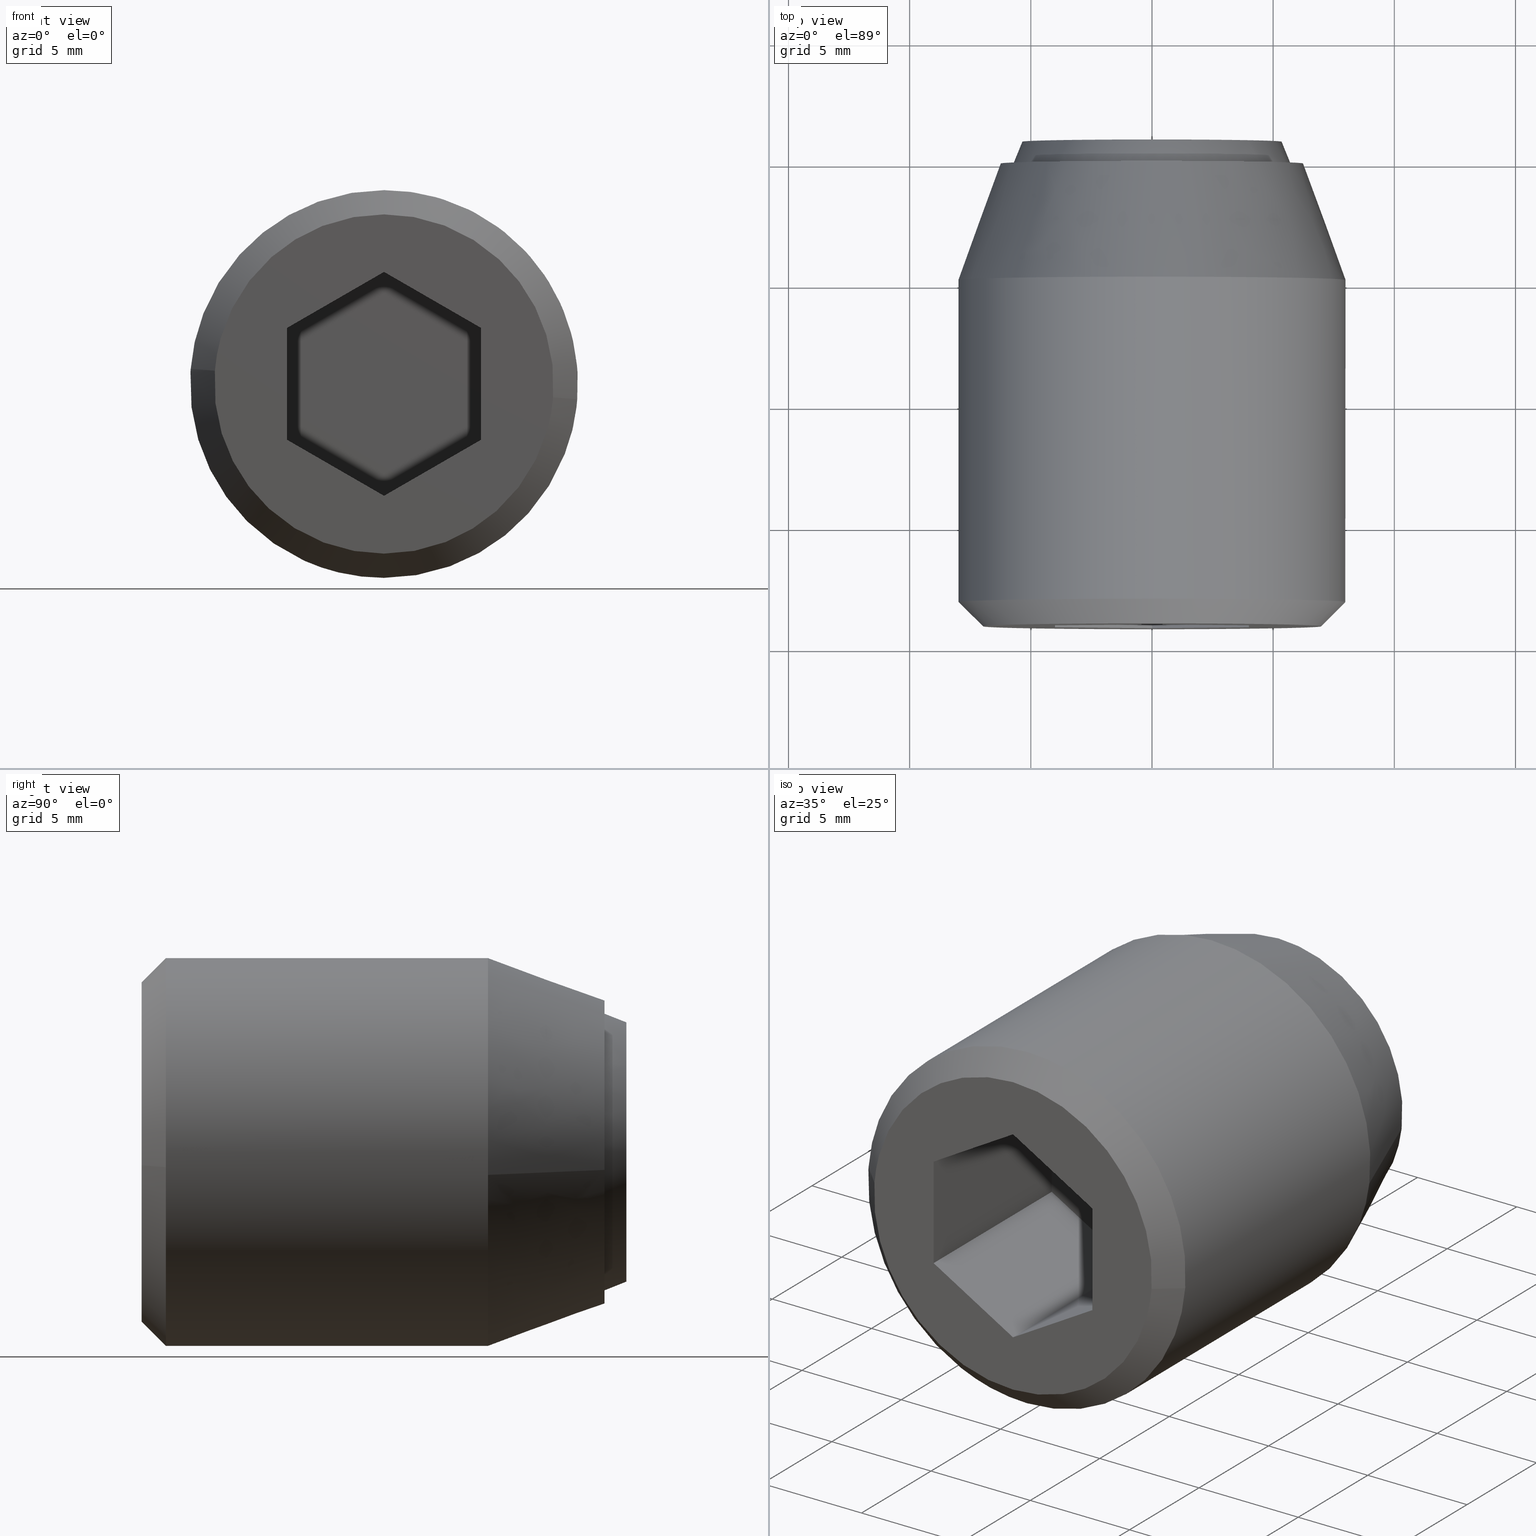
[diagram: canonical four-view strip — front | top / right | iso, engineering-drawing reading convention]
A machine part, canonical four-view strip (front | top / right | iso — engineering-drawing reading convention). The complete STEP part file that produces these views, byte-faithful:
ISO-10303-21;
HEADER;
/****************************************************************
 * Generated by software with PDE/Lib inside                    *
 * PDElib Version 4.4.1-0003, patched  Thursday August 19 11:58 *
 * International Technegroup Inc. (www.iti-oh.com)              *
 ****************************************************************/
FILE_DESCRIPTION((''),'2;1');
FILE_NAME('','2005-07-15T11:37:01',(''),(''),'','CADfix','');
FILE_SCHEMA(('AUTOMOTIVE_DESIGN'));
ENDSEC;
DATA;
#5=APPLICATION_CONTEXT('automotive design');
#6=APPLICATION_PROTOCOL_DEFINITION('Draft International Standard','automotive_design',1998,#5);
#7=PRODUCT_CONTEXT('None',#5,'mechanical');
#8=PRODUCT('body','','None',(#7));
#9=PRODUCT_RELATED_PRODUCT_CATEGORY('part','description',(#8));
#10=PRODUCT_DEFINITION_FORMATION('None','None',#8);
#11=PRODUCT_DEFINITION_CONTEXT('part definition',#5,'design');
#12=PRODUCT_DEFINITION('None','None',#10,#11);
#18=(NAMED_UNIT(*)PLANE_ANGLE_UNIT()SI_UNIT($,.RADIAN.));
#19=DIMENSIONAL_EXPONENTS(0.0,0.0,0.0,0.0,0.0,0.0,0.0);
#20=PLANE_ANGLE_MEASURE_WITH_UNIT(PLANE_ANGLE_MEASURE(0.017453292500000),#18);
#24=(CONVERSION_BASED_UNIT('DEGREE',#20)NAMED_UNIT(#19)PLANE_ANGLE_UNIT());
#28=(NAMED_UNIT(*)SI_UNIT($,.STERADIAN.)SOLID_ANGLE_UNIT());
#32=(LENGTH_UNIT()NAMED_UNIT(*)SI_UNIT(.MILLI.,.METRE.));
#34=UNCERTAINTY_MEASURE_WITH_UNIT(LENGTH_MEASURE(0.001000000000000),#32,'DISTANCE_ACCURACY_VALUE','');
#36=(GEOMETRIC_REPRESENTATION_CONTEXT(3)GLOBAL_UNCERTAINTY_ASSIGNED_CONTEXT((#34))GLOBAL_UNIT_ASSIGNED_CONTEXT((#24,#28,#32))REPRESENTATION_CONTEXT('None','None'));
#37=AXIS2_PLACEMENT_3D('',#38,#39,#40);
#38=CARTESIAN_POINT('',(0.0,0.0,0.0));
#39=DIRECTION('',(0.0,0.0,1.0));
#40=DIRECTION('',(1.0,0.0,0.0));
#41=ADVANCED_BREP_SHAPE_REPRESENTATION('',(#37,#945,#1117),#36);
#42=PRODUCT_DEFINITION_SHAPE('','',#12);
#43=SHAPE_DEFINITION_REPRESENTATION(#42,#41);
#44=CARTESIAN_POINT('',(-5.958057158181998,0.225000000000000,0.708205407940551));
#45=CARTESIAN_POINT('',(-5.978325692691634,0.225000000000000,0.537688371827866));
#46=CARTESIAN_POINT('',(-5.988808790531200,0.225000000000000,0.366291237209142));
#47=CARTESIAN_POINT('',(-6.355100027740342,0.225000000000000,-5.622517553322059));
#48=CARTESIAN_POINT('',(-0.366291237209142,0.225000000000000,-5.988808790531200));
#49=CARTESIAN_POINT('',(5.622517553322059,0.225000000000000,-6.355100027740342));
#50=CARTESIAN_POINT('',(5.988808790531200,0.225000000000000,-0.366291237209142));
#51=CARTESIAN_POINT('',(-5.958057158181998,-9.230625000000003,0.708205407940551));
#52=CARTESIAN_POINT('',(-5.978325692691634,-9.230625000000005,0.537688371827866));
#53=CARTESIAN_POINT('',(-5.988808790531200,-9.230625000000003,0.366291237209142));
#54=CARTESIAN_POINT('',(-6.355100027740342,-9.230625000000003,-5.622517553322059));
#55=CARTESIAN_POINT('',(-0.366291237209142,-9.230625000000003,-5.988808790531200));
#56=CARTESIAN_POINT('',(5.622517553322059,-9.230625000000003,-6.355100027740342));
#57=CARTESIAN_POINT('',(5.988808790531200,-9.230625000000003,-0.366291237209142));
#65=(BOUNDED_SURFACE()B_SPLINE_SURFACE(2,1,((#44,#51),(#45,#52),(#46,#53),(#47,#54),(#48,#55),(#49,#56),(#50,#57)),.UNSPECIFIED.,.F.,.F.,.U.)B_SPLINE_SURFACE_WITH_KNOTS((3,2,2,3),(2,2),(0.0,0.397645019878172,10.338770516832451,20.279896013786729),(0.0,9.455625000000005),.UNSPECIFIED.)GEOMETRIC_REPRESENTATION_ITEM()RATIONAL_B_SPLINE_SURFACE(((0.977505800795127,0.977505800795127),(0.988284271247462,0.988284271247462),(1.0,1.0),(0.707106781186548,0.707106781186548),(1.0,1.0),(0.707106781186548,0.707106781186548),(1.0,1.0)))REPRESENTATION_ITEM('')SURFACE());
#66=CARTESIAN_POINT('',(-5.958057649782875,-8.999999999999986,0.708201272129907));
#67=VERTEX_POINT('',#66);
#68=CARTESIAN_POINT('',(0.0,-9.0,-6.0));
#69=VERTEX_POINT('',#68);
#70=CARTESIAN_POINT('',(-5.958057649782876,-8.999999999999986,0.708201272129907));
#71=CARTESIAN_POINT('',(-5.999999999999999,-9.0,0.355342628144723));
#72=CARTESIAN_POINT('',(-6.0,-9.0,0.0));
#73=CARTESIAN_POINT('',(-6.0,-9.000000000000002,-6.0));
#74=CARTESIAN_POINT('',(0.0,-9.0,-6.0));
#82=(BOUNDED_CURVE()B_SPLINE_CURVE(2,(#70,#71,#72,#73,#74),.UNSPECIFIED.,.F.,.U.)B_SPLINE_CURVE_WITH_KNOTS((3,2,3),(0.229562590829971,0.250000000000000,0.500000000000000),.UNSPECIFIED.)CURVE()GEOMETRIC_REPRESENTATION_ITEM()RATIONAL_B_SPLINE_CURVE((0.956026984128897,0.976056085775931,1.0,0.707106781186548,1.0))REPRESENTATION_ITEM(''));
#83=EDGE_CURVE('',#67,#69,#82,.T.);
#84=ORIENTED_EDGE('',*,*,#83,.T.);
#85=CARTESIAN_POINT('',(5.988808827383361,-9.0,-0.366290634680674));
#86=VERTEX_POINT('',#85);
#87=CARTESIAN_POINT('',(0.0,-9.0,-6.0));
#88=CARTESIAN_POINT('',(5.644237539279285,-9.000000000000002,-6.000000000000001));
#89=CARTESIAN_POINT('',(5.988808827383361,-9.0,-0.366290634680674));
#97=(BOUNDED_CURVE()B_SPLINE_CURVE(2,(#87,#88,#89),.UNSPECIFIED.,.F.,.U.)B_SPLINE_CURVE_WITH_KNOTS((3,3),(0.500000000000000,0.739332996961512),.UNSPECIFIED.)CURVE()GEOMETRIC_REPRESENTATION_ITEM()RATIONAL_B_SPLINE_CURVE((1.0,0.719603952606690,0.976072116083805))REPRESENTATION_ITEM(''));
#98=EDGE_CURVE('',#69,#86,#97,.T.);
#99=ORIENTED_EDGE('',*,*,#98,.T.);
#100=CARTESIAN_POINT('',(5.988808826928111,-2.220446E-016,-0.366290642123967));
#101=VERTEX_POINT('',#100);
#102=CARTESIAN_POINT('',(5.988808826928111,-2.220446E-016,-0.366290642123967));
#103=CARTESIAN_POINT('',(5.988808827383361,-9.0,-0.366290634680674));
#104=QUASI_UNIFORM_CURVE('',1,(#102,#103),.UNSPECIFIED.,.F.,.U.);
#105=EDGE_CURVE('',#101,#86,#104,.T.);
#106=ORIENTED_EDGE('',*,*,#105,.F.);
#107=CARTESIAN_POINT('',(0.0,0.0,-6.0));
#108=VERTEX_POINT('',#107);
#109=CARTESIAN_POINT('',(0.0,0.0,-6.0));
#110=CARTESIAN_POINT('',(5.644237525222983,0.0,-6.0));
#111=CARTESIAN_POINT('',(5.988808826928111,-2.220446E-016,-0.366290642123967));
#119=(BOUNDED_CURVE()B_SPLINE_CURVE(2,(#109,#110,#111),.UNSPECIFIED.,.F.,.U.)B_SPLINE_CURVE_WITH_KNOTS((3,3),(0.500000000000000,0.739332996532606),.UNSPECIFIED.)CURVE()GEOMETRIC_REPRESENTATION_ITEM()RATIONAL_B_SPLINE_CURVE((1.0,0.719603953109184,0.976072115164577))REPRESENTATION_ITEM(''));
#120=EDGE_CURVE('',#108,#101,#119,.T.);
#121=ORIENTED_EDGE('',*,*,#120,.F.);
#122=CARTESIAN_POINT('',(-5.958057643721783,-2.271543E-016,0.708201323121826));
#123=VERTEX_POINT('',#122);
#124=CARTESIAN_POINT('',(-5.958057643721783,-2.271543E-016,0.708201323121826));
#125=CARTESIAN_POINT('',(-6.0,0.0,0.355342653910217));
#126=CARTESIAN_POINT('',(-6.0,0.0,0.0));
#127=CARTESIAN_POINT('',(-6.0,0.0,-6.0));
#128=CARTESIAN_POINT('',(0.0,0.0,-6.0));
#136=(BOUNDED_CURVE()B_SPLINE_CURVE(2,(#124,#125,#126,#127,#128),.UNSPECIFIED.,.F.,.U.)B_SPLINE_CURVE_WITH_KNOTS((3,2,3),(0.229562589383560,0.250000000000000,0.500000000000000),.UNSPECIFIED.)CURVE()GEOMETRIC_REPRESENTATION_ITEM()RATIONAL_B_SPLINE_CURVE((0.956026981293869,0.976056084081355,1.0,0.707106781186548,1.0))REPRESENTATION_ITEM(''));
#137=EDGE_CURVE('',#123,#108,#136,.T.);
#138=ORIENTED_EDGE('',*,*,#137,.F.);
#139=CARTESIAN_POINT('',(-5.958057643721783,-2.271543E-016,0.708201323121826));
#140=CARTESIAN_POINT('',(-5.958057649782875,-8.999999999999986,0.708201272129907));
#141=QUASI_UNIFORM_CURVE('',1,(#139,#140),.UNSPECIFIED.,.F.,.U.);
#142=EDGE_CURVE('',#123,#67,#141,.T.);
#143=ORIENTED_EDGE('',*,*,#142,.T.);
#144=EDGE_LOOP('',(#84,#99,#106,#121,#138,#143));
#145=FACE_OUTER_BOUND('',#144,.T.);
#146=ADVANCED_FACE('',(#145),#65,.F.);
#147=CARTESIAN_POINT('',(5.988808790531200,0.225000000000000,-0.366291237209142));
#148=CARTESIAN_POINT('',(6.355100027740342,0.225000000000000,5.622517553322059));
#149=CARTESIAN_POINT('',(0.366291237209142,0.225000000000000,5.988808790531200));
#150=CARTESIAN_POINT('',(-5.289260945037006,0.225000000000000,6.334717180395164));
#151=CARTESIAN_POINT('',(-5.958057158181998,0.225000000000000,0.708205407940551));
#152=CARTESIAN_POINT('',(5.988808790531200,-9.230625000000003,-0.366291237209142));
#153=CARTESIAN_POINT('',(6.355100027740342,-9.230625000000003,5.622517553322059));
#154=CARTESIAN_POINT('',(0.366291237209142,-9.230625000000003,5.988808790531200));
#155=CARTESIAN_POINT('',(-5.289260945037006,-9.230625000000003,6.334717180395164));
#156=CARTESIAN_POINT('',(-5.958057158181998,-9.230625000000003,0.708205407940551));
#164=(BOUNDED_SURFACE()B_SPLINE_SURFACE(2,1,((#147,#152),(#148,#153),(#149,#154),(#150,#155),(#151,#156)),.UNSPECIFIED.,.F.,.F.,.U.)B_SPLINE_SURFACE_WITH_KNOTS((3,2,3),(2,2),(0.0,9.941125496954278,19.484605974030391),(0.0,9.455625000000005),.UNSPECIFIED.)GEOMETRIC_REPRESENTATION_ITEM()RATIONAL_B_SPLINE_SURFACE(((1.0,1.0),(0.707106781186548,0.707106781186548),(1.0,1.0),(0.718822509939086,0.718822509939086),(0.977505800795127,0.977505800795127)))REPRESENTATION_ITEM('')SURFACE());
#165=CARTESIAN_POINT('',(0.0,-9.0,6.0));
#166=VERTEX_POINT('',#165);
#167=CARTESIAN_POINT('',(0.0,-9.0,6.0));
#168=CARTESIAN_POINT('',(-5.329050880930796,-9.0,6.0));
#169=CARTESIAN_POINT('',(-5.958057649782876,-8.999999999999986,0.708201272129907));
#177=(BOUNDED_CURVE()B_SPLINE_CURVE(2,(#167,#168,#169),.UNSPECIFIED.,.F.,.U.)B_SPLINE_CURVE_WITH_KNOTS((3,3),(0.0,0.229562590829971),.UNSPECIFIED.)CURVE()GEOMETRIC_REPRESENTATION_ITEM()RATIONAL_B_SPLINE_CURVE((1.0,0.731050695410616,0.956026984128897))REPRESENTATION_ITEM(''));
#178=EDGE_CURVE('',#166,#67,#177,.T.);
#179=ORIENTED_EDGE('',*,*,#178,.T.);
#180=ORIENTED_EDGE('',*,*,#142,.F.);
#181=CARTESIAN_POINT('',(0.0,0.0,6.0));
#182=VERTEX_POINT('',#181);
#183=CARTESIAN_POINT('',(0.0,0.0,6.0));
#184=CARTESIAN_POINT('',(-5.329050835001155,0.0,6.000000000000002));
#185=CARTESIAN_POINT('',(-5.958057643721783,-2.271543E-016,0.708201323121826));
#193=(BOUNDED_CURVE()B_SPLINE_CURVE(2,(#183,#184,#185),.UNSPECIFIED.,.F.,.U.)B_SPLINE_CURVE_WITH_KNOTS((3,3),(0.0,0.229562589383560),.UNSPECIFIED.)CURVE()GEOMETRIC_REPRESENTATION_ITEM()RATIONAL_B_SPLINE_CURVE((1.0,0.731050697105193,0.956026981293869))REPRESENTATION_ITEM(''));
#194=EDGE_CURVE('',#182,#123,#193,.T.);
#195=ORIENTED_EDGE('',*,*,#194,.F.);
#196=CARTESIAN_POINT('',(5.988808826928111,-2.220446E-016,-0.366290642123967));
#197=CARTESIAN_POINT('',(6.0,0.0,-0.183315983037803));
#198=CARTESIAN_POINT('',(6.0,0.0,0.0));
#199=CARTESIAN_POINT('',(6.0,0.0,6.0));
#200=CARTESIAN_POINT('',(0.0,0.0,6.0));
#208=(BOUNDED_CURVE()B_SPLINE_CURVE(2,(#196,#197,#198,#199,#200),.UNSPECIFIED.,.F.,.U.)B_SPLINE_CURVE_WITH_KNOTS((3,2,3),(0.739332996532607,0.750000000000000,1.0),.UNSPECIFIED.)CURVE()GEOMETRIC_REPRESENTATION_ITEM()RATIONAL_B_SPLINE_CURVE((0.976072115164579,0.987502828077364,1.0,0.707106781186548,1.0))REPRESENTATION_ITEM(''));
#209=EDGE_CURVE('',#101,#182,#208,.T.);
#210=ORIENTED_EDGE('',*,*,#209,.F.);
#211=ORIENTED_EDGE('',*,*,#105,.T.);
#212=CARTESIAN_POINT('',(5.988808827383361,-9.0,-0.366290634680674));
#213=CARTESIAN_POINT('',(6.0,-8.999999999999998,-0.183315975573640));
#214=CARTESIAN_POINT('',(6.0,-9.0,0.0));
#215=CARTESIAN_POINT('',(6.0,-9.000000000000002,6.0));
#216=CARTESIAN_POINT('',(0.0,-9.0,6.0));
#224=(BOUNDED_CURVE()B_SPLINE_CURVE(2,(#212,#213,#214,#215,#216),.UNSPECIFIED.,.F.,.U.)B_SPLINE_CURVE_WITH_KNOTS((3,2,3),(0.739332996961513,0.750000000000000,1.0),.UNSPECIFIED.)CURVE()GEOMETRIC_REPRESENTATION_ITEM()RATIONAL_B_SPLINE_CURVE((0.976072116083806,0.987502828579858,1.0,0.707106781186548,1.0))REPRESENTATION_ITEM(''));
#225=EDGE_CURVE('',#86,#166,#224,.T.);
#226=ORIENTED_EDGE('',*,*,#225,.T.);
#227=EDGE_LOOP('',(#179,#180,#195,#210,#211,#226));
#228=FACE_OUTER_BOUND('',#227,.T.);
#229=ADVANCED_FACE('',(#228),#164,.F.);
#230=CARTESIAN_POINT('',(-1.874588911880106,-4.475788149999998,-7.777269212998617));
#231=CARTESIAN_POINT('',(-1.190626377330084,-4.475788149999998,-7.942127667591645));
#232=CARTESIAN_POINT('',(-0.488388316278856,-4.475788149999998,-7.985078387374935));
#233=CARTESIAN_POINT('',(7.496690071096078,-4.475788149999998,-8.473466703653791));
#234=CARTESIAN_POINT('',(7.985078387374934,-4.475788149999998,-0.488388316278857));
#235=CARTESIAN_POINT('',(8.473466703653790,-4.475788149999998,7.496690071096077));
#236=CARTESIAN_POINT('',(0.488388316278856,-4.475788149999998,7.985078387374933));
#237=CARTESIAN_POINT('',(-7.496690071096078,-4.475788149999998,8.473466703653788));
#238=CARTESIAN_POINT('',(-7.985078387374934,-4.475788149999998,0.488388316278855));
#239=CARTESIAN_POINT('',(-1.874588911880106,-18.440605296250009,-7.777269212998617));
#240=CARTESIAN_POINT('',(-1.190626377330084,-18.440605296250009,-7.942127667591645));
#241=CARTESIAN_POINT('',(-0.488388316278856,-18.440605296250009,-7.985078387374935));
#242=CARTESIAN_POINT('',(7.496690071096078,-18.440605296250002,-8.473466703653791));
#243=CARTESIAN_POINT('',(7.985078387374934,-18.440605296250009,-0.488388316278857));
#244=CARTESIAN_POINT('',(8.473466703653790,-18.440605296250002,7.496690071096077));
#245=CARTESIAN_POINT('',(0.488388316278856,-18.440605296250009,7.985078387374933));
#246=CARTESIAN_POINT('',(-7.496690071096078,-18.440605296250002,8.473466703653788));
#247=CARTESIAN_POINT('',(-7.985078387374934,-18.440605296250009,0.488388316278855));
#255=(BOUNDED_SURFACE()B_SPLINE_SURFACE(2,1,((#230,#239),(#231,#240),(#232,#241),(#233,#242),(#234,#243),(#235,#244),(#236,#245),(#237,#246),(#238,#247)),.UNSPECIFIED.,.F.,.F.,.U.)B_SPLINE_SURFACE_WITH_KNOTS((3,2,2,2,3),(2,2),(0.0,1.590580079512685,14.845414075451730,28.100248071390769,41.355082067329803),(0.0,13.964817146250009),.UNSPECIFIED.)GEOMETRIC_REPRESENTATION_ITEM()RATIONAL_B_SPLINE_SURFACE(((0.938140952186599,0.938140952186599),(0.964852813742386,0.964852813742386),(1.0,1.0),(0.707106781186548,0.707106781186548),(1.0,1.0),(0.707106781186548,0.707106781186548),(1.0,1.0),(0.707106781186548,0.707106781186548),(1.0,1.0)))REPRESENTATION_ITEM('')SURFACE());
#256=CARTESIAN_POINT('',(-1.874588260423986,-18.100000000000001,-7.777269370021854));
#257=VERTEX_POINT('',#256);
#258=CARTESIAN_POINT('',(0.0,-18.100000000000001,-8.000000000000002));
#259=VERTEX_POINT('',#258);
#260=CARTESIAN_POINT('',(-1.874588260423986,-18.100000000000001,-7.777269370021854));
#261=CARTESIAN_POINT('',(-0.950525745030588,-18.100000000000001,-8.000000000000002));
#262=CARTESIAN_POINT('',(0.0,-18.100000000000001,-8.000000000000002));
#270=(BOUNDED_CURVE()B_SPLINE_CURVE(2,(#260,#261,#262),.UNSPECIFIED.,.F.,.U.)B_SPLINE_CURVE_WITH_KNOTS((3,3),(0.959962737167990,1.0),.UNSPECIFIED.)CURVE()GEOMETRIC_REPRESENTATION_ITEM()RATIONAL_B_SPLINE_CURVE((0.921210943469347,0.953093428866610,1.0))REPRESENTATION_ITEM(''));
#271=EDGE_CURVE('',#257,#259,#270,.T.);
#272=ORIENTED_EDGE('',*,*,#271,.F.);
#273=CARTESIAN_POINT('',(-1.874588268468437,-4.808085999999999,-7.777269368082868));
#274=VERTEX_POINT('',#273);
#275=CARTESIAN_POINT('',(-1.874588268468437,-4.808085999999999,-7.777269368082868));
#276=CARTESIAN_POINT('',(-1.874588260423986,-18.100000000000001,-7.777269370021854));
#277=QUASI_UNIFORM_CURVE('',1,(#275,#276),.UNSPECIFIED.,.F.,.U.);
#278=EDGE_CURVE('',#274,#257,#277,.T.);
#279=ORIENTED_EDGE('',*,*,#278,.F.);
#280=CARTESIAN_POINT('',(0.0,-4.808085999999999,-8.000000000000002));
#281=VERTEX_POINT('',#280);
#282=CARTESIAN_POINT('',(-1.874588268468437,-4.808085999999999,-7.777269368082868));
#283=CARTESIAN_POINT('',(-0.950525753422238,-4.808085999999999,-8.000000000000002));
#284=CARTESIAN_POINT('',(0.0,-4.808085999999999,-8.000000000000002));
#292=(BOUNDED_CURVE()B_SPLINE_CURVE(2,(#282,#283,#284),.UNSPECIFIED.,.F.,.U.)B_SPLINE_CURVE_WITH_KNOTS((3,3),(0.959962736831104,1.0),.UNSPECIFIED.)CURVE()GEOMETRIC_REPRESENTATION_ITEM()RATIONAL_B_SPLINE_CURVE((0.921210942932808,0.953093428471923,1.0))REPRESENTATION_ITEM(''));
#293=EDGE_CURVE('',#274,#281,#292,.T.);
#294=ORIENTED_EDGE('',*,*,#293,.T.);
#295=CARTESIAN_POINT('',(7.944075678025839,-4.808083722398557,-0.944271337131582));
#296=VERTEX_POINT('',#295);
#297=CARTESIAN_POINT('',(0.0,-4.808085999999999,-8.000000000000002));
#298=CARTESIAN_POINT('',(7.105397995833197,-4.808084861199280,-7.999999951076153));
#299=CARTESIAN_POINT('',(7.944075678025839,-4.808083722398557,-0.944271337131582));
#307=(BOUNDED_CURVE()B_SPLINE_CURVE(2,(#297,#298,#299),.UNSPECIFIED.,.F.,.U.)B_SPLINE_CURVE_WITH_KNOTS((3,3),(0.0,0.229562525472899),.UNSPECIFIED.)CURVE()GEOMETRIC_REPRESENTATION_ITEM()RATIONAL_B_SPLINE_CURVE((1.0,0.731050771981190,0.956026856026257))REPRESENTATION_ITEM(''));
#308=EDGE_CURVE('',#281,#296,#307,.T.);
#309=ORIENTED_EDGE('',*,*,#308,.T.);
#310=CARTESIAN_POINT('',(0.0,-4.808085999999999,7.999999999999998));
#311=VERTEX_POINT('',#310);
#312=CARTESIAN_POINT('',(7.944075678025839,-4.808083722398557,-0.944271337131582));
#313=CARTESIAN_POINT('',(7.999999198465768,-4.808083782300880,-0.473791627893970));
#314=CARTESIAN_POINT('',(7.999999222841892,-4.808083849745175,0.000000092376777));
#315=CARTESIAN_POINT('',(7.999999634434140,-4.808084988545896,8.000000043452928));
#316=CARTESIAN_POINT('',(0.0,-4.808085999999999,7.999999999999998));
#324=(BOUNDED_CURVE()B_SPLINE_CURVE(2,(#312,#313,#314,#315,#316),.UNSPECIFIED.,.F.,.U.)B_SPLINE_CURVE_WITH_KNOTS((3,2,3),(0.229562525472899,0.250000000000000,0.500000000000000),.UNSPECIFIED.)CURVE()GEOMETRIC_REPRESENTATION_ITEM()RATIONAL_B_SPLINE_CURVE((0.956026856026257,0.976056009205358,1.0,0.707106781186548,1.0))REPRESENTATION_ITEM(''));
#325=EDGE_CURVE('',#296,#311,#324,.T.);
#326=ORIENTED_EDGE('',*,*,#325,.T.);
#327=CARTESIAN_POINT('',(-7.985077604216481,-4.808080615921306,0.488385069813843));
#328=VERTEX_POINT('',#327);
#329=CARTESIAN_POINT('',(0.0,-4.808085999999999,7.999999999999998));
#330=CARTESIAN_POINT('',(-7.525651055125307,-4.808083307960653,7.999999970089797));
#331=CARTESIAN_POINT('',(-7.985077604216481,-4.808080615921306,0.488385069813843));
#339=(BOUNDED_CURVE()B_SPLINE_CURVE(2,(#329,#330,#331),.UNSPECIFIED.,.F.,.U.)B_SPLINE_CURVE_WITH_KNOTS((3,3),(0.500000000000000,0.739333031101071),.UNSPECIFIED.)CURVE()GEOMETRIC_REPRESENTATION_ITEM()RATIONAL_B_SPLINE_CURVE((1.0,0.719603912609709,0.976072189251411))REPRESENTATION_ITEM(''));
#340=EDGE_CURVE('',#311,#328,#339,.T.);
#341=ORIENTED_EDGE('',*,*,#340,.T.);
#342=CARTESIAN_POINT('',(-7.985078427651679,-18.100000000000001,0.488387657759005));
#343=VERTEX_POINT('',#342);
#344=CARTESIAN_POINT('',(-7.985077604216481,-4.808080615921306,0.488385069813843));
#345=CARTESIAN_POINT('',(-7.985078427651679,-18.100000000000001,0.488387657759005));
#346=QUASI_UNIFORM_CURVE('',1,(#344,#345),.UNSPECIFIED.,.F.,.U.);
#347=EDGE_CURVE('',#328,#343,#346,.T.);
#348=ORIENTED_EDGE('',*,*,#347,.T.);
#349=CARTESIAN_POINT('',(-7.975338669865801,-18.099999999998040,0.627672765837859));
#350=VERTEX_POINT('',#349);
#351=CARTESIAN_POINT('',(-7.975338669865801,-18.099999999998040,0.627672765837859));
#352=CARTESIAN_POINT('',(-7.980816338874669,-18.100000000000001,0.558072381912545));
#353=CARTESIAN_POINT('',(-7.985078427651679,-18.100000000000001,0.488387657759005));
#361=(BOUNDED_CURVE()B_SPLINE_CURVE(2,(#351,#352,#353),.UNSPECIFIED.,.F.,.U.)B_SPLINE_CURVE_WITH_KNOTS((3,3),(0.736331300632124,0.739332990701424),.UNSPECIFIED.)CURVE()GEOMETRIC_REPRESENTATION_ITEM()RATIONAL_B_SPLINE_CURVE((0.969723356170475,0.972855505261019,0.976072102667241))REPRESENTATION_ITEM(''));
#362=EDGE_CURVE('',#350,#343,#361,.T.);
#363=ORIENTED_EDGE('',*,*,#362,.F.);
#364=CARTESIAN_POINT('',(0.0,-18.100000000000001,7.999999999999998));
#365=VERTEX_POINT('',#364);
#366=CARTESIAN_POINT('',(0.0,-18.100000000000001,7.999999999999998));
#367=CARTESIAN_POINT('',(-7.395123933237853,-18.099999999999991,7.999999999999999));
#368=CARTESIAN_POINT('',(-7.975338669865801,-18.099999999998044,0.627672765837859));
#376=(BOUNDED_CURVE()B_SPLINE_CURVE(2,(#366,#367,#368),.UNSPECIFIED.,.F.,.U.)B_SPLINE_CURVE_WITH_KNOTS((3,3),(0.500000000000000,0.736331300632124),.UNSPECIFIED.)CURVE()GEOMETRIC_REPRESENTATION_ITEM()RATIONAL_B_SPLINE_CURVE((1.0,0.723120658605950,0.969723356170475))REPRESENTATION_ITEM(''));
#377=EDGE_CURVE('',#365,#350,#376,.T.);
#378=ORIENTED_EDGE('',*,*,#377,.F.);
#379=CARTESIAN_POINT('',(7.975338669865801,-18.099999999998040,-0.627672765837861));
#380=VERTEX_POINT('',#379);
#381=CARTESIAN_POINT('',(7.975338669865801,-18.099999999998044,-0.627672765837861));
#382=CARTESIAN_POINT('',(8.0,-18.100000000000001,-0.314320856076372));
#383=CARTESIAN_POINT('',(8.0,-18.100000000000001,-1.291960E-015));
#384=CARTESIAN_POINT('',(8.0,-18.099999999999998,7.999999999999999));
#385=CARTESIAN_POINT('',(0.0,-18.100000000000001,7.999999999999998));
#393=(BOUNDED_CURVE()B_SPLINE_CURVE(2,(#381,#382,#383,#384,#385),.UNSPECIFIED.,.F.,.U.)B_SPLINE_CURVE_WITH_KNOTS((3,2,3),(0.236331300632125,0.250000000000000,0.500000000000000),.UNSPECIFIED.)CURVE()GEOMETRIC_REPRESENTATION_ITEM()RATIONAL_B_SPLINE_CURVE((0.969723356170475,0.983986122580598,1.0,0.707106781186548,1.0))REPRESENTATION_ITEM(''));
#394=EDGE_CURVE('',#380,#365,#393,.T.);
#395=ORIENTED_EDGE('',*,*,#394,.F.);
#396=CARTESIAN_POINT('',(0.0,-18.100000000000001,-8.000000000000002));
#397=CARTESIAN_POINT('',(7.395123933237854,-18.099999999999991,-8.000000000000002));
#398=CARTESIAN_POINT('',(7.975338669865801,-18.099999999998044,-0.627672765837861));
#406=(BOUNDED_CURVE()B_SPLINE_CURVE(2,(#396,#397,#398),.UNSPECIFIED.,.F.,.U.)B_SPLINE_CURVE_WITH_KNOTS((3,3),(0.0,0.236331300632124),.UNSPECIFIED.)CURVE()GEOMETRIC_REPRESENTATION_ITEM()RATIONAL_B_SPLINE_CURVE((1.0,0.723120658605950,0.969723356170475))REPRESENTATION_ITEM(''));
#407=EDGE_CURVE('',#259,#380,#406,.T.);
#408=ORIENTED_EDGE('',*,*,#407,.F.);
#409=EDGE_LOOP('',(#272,#279,#294,#309,#326,#341,#348,#363,#378,#395,#408));
#410=FACE_OUTER_BOUND('',#409,.T.);
#411=ADVANCED_FACE('',(#410),#255,.T.);
#412=CARTESIAN_POINT('',(-7.985078387374934,-4.475788149999998,0.488388316278855));
#413=CARTESIAN_POINT('',(-8.394509095444208,-4.475788149999997,-6.205744588130942));
#414=CARTESIAN_POINT('',(-1.874588911880106,-4.475788149999998,-7.777269212998617));
#415=CARTESIAN_POINT('',(-7.985078387374934,-18.440605296250009,0.488388316278855));
#416=CARTESIAN_POINT('',(-8.394509095444208,-18.440605296250006,-6.205744588130942));
#417=CARTESIAN_POINT('',(-1.874588911880106,-18.440605296250009,-7.777269212998617));
#425=(BOUNDED_SURFACE()B_SPLINE_SURFACE(2,1,((#412,#415),(#413,#416),(#414,#417)),.UNSPECIFIED.,.F.,.F.,.U.)B_SPLINE_SURFACE_WITH_KNOTS((3,3),(2,2),(0.0,11.635506658838469),(0.0,13.964817146250009),.UNSPECIFIED.)GEOMETRIC_REPRESENTATION_ITEM()RATIONAL_B_SPLINE_SURFACE(((1.0,1.0),(0.742253967444162,0.742253967444162),(0.938140952186599,0.938140952186599)))REPRESENTATION_ITEM('')SURFACE());
#426=CARTESIAN_POINT('',(-7.985078427651679,-18.099999999999998,0.488387657759005));
#427=CARTESIAN_POINT('',(-8.000000000000002,-18.099999999999998,0.244421446022439));
#428=CARTESIAN_POINT('',(-8.0,-18.100000000000001,-1.291960E-015));
#429=CARTESIAN_POINT('',(-8.0,-18.100000000000009,-6.300835911350450));
#430=CARTESIAN_POINT('',(-1.874588260423986,-18.099999999999998,-7.777269370021854));
#438=(BOUNDED_CURVE()B_SPLINE_CURVE(2,(#426,#427,#428,#429,#430),.UNSPECIFIED.,.F.,.U.)B_SPLINE_CURVE_WITH_KNOTS((3,2,3),(0.739332990701423,0.750000000000000,0.959962737167991),.UNSPECIFIED.)CURVE()GEOMETRIC_REPRESENTATION_ITEM()RATIONAL_B_SPLINE_CURVE((0.976072102667239,0.987502821245707,1.0,0.754013352319937,0.921210943469348))REPRESENTATION_ITEM(''));
#439=EDGE_CURVE('',#343,#257,#438,.T.);
#440=ORIENTED_EDGE('',*,*,#439,.F.);
#441=ORIENTED_EDGE('',*,*,#347,.F.);
#442=CARTESIAN_POINT('',(-7.985077604216481,-4.808080615921306,0.488385069813843));
#443=CARTESIAN_POINT('',(-7.999999051485578,-4.808080714031474,0.244420452694563));
#444=CARTESIAN_POINT('',(-7.999999082489564,-4.808080816979779,-0.000000051795188));
#445=CARTESIAN_POINT('',(-7.999999881731105,-4.808083470850268,-6.300835843808900));
#446=CARTESIAN_POINT('',(-1.874588268468437,-4.808085999999999,-7.777269368082869));
#454=(BOUNDED_CURVE()B_SPLINE_CURVE(2,(#442,#443,#444,#445,#446),.UNSPECIFIED.,.F.,.U.)B_SPLINE_CURVE_WITH_KNOTS((3,2,3),(0.739333031101071,0.750000000000000,0.959962736831104),.UNSPECIFIED.)CURVE()GEOMETRIC_REPRESENTATION_ITEM()RATIONAL_B_SPLINE_CURVE((0.976072189251411,0.987502868576839,1.0,0.754013352714625,0.921210942932807))REPRESENTATION_ITEM(''));
#455=EDGE_CURVE('',#328,#274,#454,.T.);
#456=ORIENTED_EDGE('',*,*,#455,.T.);
#457=ORIENTED_EDGE('',*,*,#278,.T.);
#458=EDGE_LOOP('',(#440,#441,#456,#457));
#459=FACE_OUTER_BOUND('',#458,.T.);
#460=ADVANCED_FACE('',(#459),#425,.T.);
#461=CARTESIAN_POINT('',(6.162865372994506,0.120202150000000,-0.732549968838508));
#462=CARTESIAN_POINT('',(6.183830638377910,0.120202150000000,-0.556171409609450));
#463=CARTESIAN_POINT('',(6.194674092705711,0.120202150000000,-0.378882498488207));
#464=CARTESIAN_POINT('',(6.573556591193916,0.120202150000000,5.815791594217503));
#465=CARTESIAN_POINT('',(0.378882498488206,0.120202150000000,6.194674092705710));
#466=CARTESIAN_POINT('',(-5.815791594217505,0.120202150000000,6.573556591193915));
#467=CARTESIAN_POINT('',(-6.194674092705711,0.120202150000000,0.378882498488205));
#468=CARTESIAN_POINT('',(7.988606481857203,-4.931293203750001,-0.949566974964459));
#469=CARTESIAN_POINT('',(8.015782680719120,-4.931293203750000,-0.720936489591182));
#470=CARTESIAN_POINT('',(8.029838494741666,-4.931293203750000,-0.491125961723624));
#471=CARTESIAN_POINT('',(8.520964456465288,-4.931293203750001,7.538712533018043));
#472=CARTESIAN_POINT('',(0.491125961723622,-4.931293203750000,8.029838494741664));
#473=CARTESIAN_POINT('',(-7.538712533018044,-4.931293203750001,8.520964456465288));
#474=CARTESIAN_POINT('',(-8.029838494741666,-4.931293203750000,0.491125961723621));
#482=(BOUNDED_SURFACE()B_SPLINE_SURFACE(2,1,((#461,#468),(#462,#469),(#463,#470),(#464,#471),(#465,#472),(#466,#473),(#467,#474)),.UNSPECIFIED.,.F.,.F.,.U.)B_SPLINE_SURFACE_WITH_KNOTS((3,2,2,3),(2,2),(0.0,0.533165342147589,13.862298895837300,27.191432449527021),(0.0,5.375689005745860),.UNSPECIFIED.)GEOMETRIC_REPRESENTATION_ITEM()RATIONAL_B_SPLINE_SURFACE(((0.977505800795127,0.977505800795127),(0.988284271247462,0.988284271247462),(1.0,1.0),(0.707106781186548,0.707106781186548),(1.0,1.0),(0.707106781186548,0.707106781186548),(1.0,1.0)))REPRESENTATION_ITEM('')SURFACE());
#483=ORIENTED_EDGE('',*,*,#325,.F.);
#484=CARTESIAN_POINT('',(6.206309539772342,-2.137983E-012,-0.737713966616161));
#485=VERTEX_POINT('',#484);
#486=CARTESIAN_POINT('',(6.206309539772342,-2.137983E-012,-0.737713966616161));
#487=CARTESIAN_POINT('',(7.944075678025839,-4.808083722398557,-0.944271337131582));
#488=QUASI_UNIFORM_CURVE('',1,(#486,#487),.UNSPECIFIED.,.F.,.U.);
#489=EDGE_CURVE('',#485,#296,#488,.T.);
#490=ORIENTED_EDGE('',*,*,#489,.F.);
#491=CARTESIAN_POINT('',(0.0,0.0,6.249999999999999));
#492=VERTEX_POINT('',#491);
#493=CARTESIAN_POINT('',(6.206309539772342,-2.137983E-012,-0.737713966616161));
#494=CARTESIAN_POINT('',(6.250000000000000,0.0,-0.370150747835887));
#495=CARTESIAN_POINT('',(6.250000000000000,0.0,-1.291960E-015));
#496=CARTESIAN_POINT('',(6.249999999999999,0.0,6.249999999999999));
#497=CARTESIAN_POINT('',(0.0,0.0,6.249999999999999));
#505=(BOUNDED_CURVE()B_SPLINE_CURVE(2,(#493,#494,#495,#496,#497),.UNSPECIFIED.,.F.,.U.)B_SPLINE_CURVE_WITH_KNOTS((3,2,3),(0.229562473515027,0.250000000000000,0.500000000000000),.UNSPECIFIED.)CURVE()GEOMETRIC_REPRESENTATION_ITEM()RATIONAL_B_SPLINE_CURVE((0.956026754186676,0.976055948332925,1.0,0.707106781186547,1.0))REPRESENTATION_ITEM(''));
#506=EDGE_CURVE('',#485,#492,#505,.T.);
#507=ORIENTED_EDGE('',*,*,#506,.T.);
#508=CARTESIAN_POINT('',(-6.238341678451795,0.000002785024005,0.381550038736573));
#509=VERTEX_POINT('',#508);
#510=CARTESIAN_POINT('',(0.0,0.0,6.249999999999999));
#511=CARTESIAN_POINT('',(-5.879415501281227,0.000001392512002,6.249999969058832));
#512=CARTESIAN_POINT('',(-6.238341678451796,0.000002785024005,0.381550038736573));
#520=(BOUNDED_CURVE()B_SPLINE_CURVE(2,(#510,#511,#512),.UNSPECIFIED.,.F.,.U.)B_SPLINE_CURVE_WITH_KNOTS((3,3),(0.500000000000000,0.739333052727923),.UNSPECIFIED.)CURVE()GEOMETRIC_REPRESENTATION_ITEM()RATIONAL_B_SPLINE_CURVE((1.0,0.719603887272276,0.976072235601904))REPRESENTATION_ITEM(''));
#521=EDGE_CURVE('',#492,#509,#520,.T.);
#522=ORIENTED_EDGE('',*,*,#521,.T.);
#523=CARTESIAN_POINT('',(-6.238341678451795,0.000002785024005,0.381550038736573));
#524=CARTESIAN_POINT('',(-7.985077604216481,-4.808080615921306,0.488385069813843));
#525=QUASI_UNIFORM_CURVE('',1,(#523,#524),.UNSPECIFIED.,.F.,.U.);
#526=EDGE_CURVE('',#509,#328,#525,.T.);
#527=ORIENTED_EDGE('',*,*,#526,.T.);
#528=ORIENTED_EDGE('',*,*,#340,.F.);
#529=EDGE_LOOP('',(#483,#490,#507,#522,#527,#528));
#530=FACE_OUTER_BOUND('',#529,.T.);
#531=ADVANCED_FACE('',(#530),#482,.T.);
#532=CARTESIAN_POINT('',(-6.194674092705711,0.120202150000000,0.378882498488205));
#533=CARTESIAN_POINT('',(-6.573556591193916,0.120202150000000,-5.815791594217505));
#534=CARTESIAN_POINT('',(-0.378882498488206,0.120202150000000,-6.194674092705712));
#535=CARTESIAN_POINT('',(5.471079290022653,0.120202150000000,-6.552473083471250));
#536=CARTESIAN_POINT('',(6.162865372994506,0.120202150000000,-0.732549968838508));
#537=CARTESIAN_POINT('',(-8.029838494741666,-4.931293203750000,0.491125961723621));
#538=CARTESIAN_POINT('',(-8.520964456465288,-4.931293203750001,-7.538712533018044));
#539=CARTESIAN_POINT('',(-0.491125961723622,-4.931293203750000,-8.029838494741668));
#540=CARTESIAN_POINT('',(7.091879642633344,-4.931293203750000,-8.493634986119947));
#541=CARTESIAN_POINT('',(7.988606481857203,-4.931293203750001,-0.949566974964459));
#549=(BOUNDED_SURFACE()B_SPLINE_SURFACE(2,1,((#532,#537),(#533,#538),(#534,#539),(#535,#540),(#536,#541)),.UNSPECIFIED.,.F.,.F.,.U.)B_SPLINE_SURFACE_WITH_KNOTS((3,2,3),(2,2),(0.0,13.329133553689720,26.125101765231850),(0.0,5.375689005745859),.UNSPECIFIED.)GEOMETRIC_REPRESENTATION_ITEM()RATIONAL_B_SPLINE_SURFACE(((1.0,1.0),(0.707106781186548,0.707106781186548),(1.0,1.0),(0.718822509939086,0.718822509939086),(0.977505800795127,0.977505800795127)))REPRESENTATION_ITEM('')SURFACE());
#550=ORIENTED_EDGE('',*,*,#308,.F.);
#551=ORIENTED_EDGE('',*,*,#293,.F.);
#552=ORIENTED_EDGE('',*,*,#455,.F.);
#553=ORIENTED_EDGE('',*,*,#526,.F.);
#554=CARTESIAN_POINT('',(0.0,0.0,-6.250000000000001));
#555=VERTEX_POINT('',#554);
#556=CARTESIAN_POINT('',(-6.238341678451796,0.000002785024005,0.381550038736573));
#557=CARTESIAN_POINT('',(-6.249999002763765,0.000002745001903,0.190953069299741));
#558=CARTESIAN_POINT('',(-6.249999018219906,0.000002702457179,-0.000000060047728));
#559=CARTESIAN_POINT('',(-6.249999524107872,0.000001309945177,-6.250000029106561));
#560=CARTESIAN_POINT('',(0.0,0.0,-6.250000000000001));
#568=(BOUNDED_CURVE()B_SPLINE_CURVE(2,(#556,#557,#558,#559,#560),.UNSPECIFIED.,.F.,.U.)B_SPLINE_CURVE_WITH_KNOTS((3,2,3),(0.739333052727923,0.750000000000000,1.0),.UNSPECIFIED.)CURVE()GEOMETRIC_REPRESENTATION_ITEM()RATIONAL_B_SPLINE_CURVE((0.976072235601904,0.987502893914272,1.0,0.707106781186547,1.0))REPRESENTATION_ITEM(''));
#569=EDGE_CURVE('',#509,#555,#568,.T.);
#570=ORIENTED_EDGE('',*,*,#569,.T.);
#571=CARTESIAN_POINT('',(0.0,0.0,-6.250000000000001));
#572=CARTESIAN_POINT('',(5.551090787175638,0.0,-6.250000000000003));
#573=CARTESIAN_POINT('',(6.206309539772342,-2.137983E-012,-0.737713966616161));
#581=(BOUNDED_CURVE()B_SPLINE_CURVE(2,(#571,#572,#573),.UNSPECIFIED.,.F.,.U.)B_SPLINE_CURVE_WITH_KNOTS((3,3),(0.0,0.229562473515027),.UNSPECIFIED.)CURVE()GEOMETRIC_REPRESENTATION_ITEM()RATIONAL_B_SPLINE_CURVE((1.0,0.731050832853623,0.956026754186676))REPRESENTATION_ITEM(''));
#582=EDGE_CURVE('',#555,#485,#581,.T.);
#583=ORIENTED_EDGE('',*,*,#582,.T.);
#584=ORIENTED_EDGE('',*,*,#489,.T.);
#585=EDGE_LOOP('',(#550,#551,#552,#553,#570,#583,#584));
#586=FACE_OUTER_BOUND('',#585,.T.);
#587=ADVANCED_FACE('',(#586),#549,.T.);
#588=CARTESIAN_POINT('',(6.953498402788563,-19.125000000000000,-0.547252192701724));
#589=CARTESIAN_POINT('',(6.406246210086841,-19.124999999999996,-7.500750595490286));
#590=CARTESIAN_POINT('',(-0.547252192701722,-19.125000000000000,-6.953498402788564));
#591=CARTESIAN_POINT('',(-7.500750595490285,-19.124999999999996,-6.406246210086843));
#592=CARTESIAN_POINT('',(-6.953498402788563,-19.125000000000000,0.547252192701721));
#593=CARTESIAN_POINT('',(8.000884676541935,-18.074375000000000,-0.629683280150792));
#594=CARTESIAN_POINT('',(7.371201396391145,-18.074374999999993,-8.630567956692726));
#595=CARTESIAN_POINT('',(-0.629683280150791,-18.074375000000000,-8.000884676541936));
#596=CARTESIAN_POINT('',(-8.630567956692726,-18.074374999999993,-7.371201396391145));
#597=CARTESIAN_POINT('',(-8.000884676541935,-18.074375000000000,0.629683280150789));
#605=(BOUNDED_SURFACE()B_SPLINE_SURFACE(2,1,((#588,#593),(#589,#594),(#590,#595),(#591,#596),(#592,#597)),.UNSPECIFIED.,.F.,.F.,.U.)B_SPLINE_SURFACE_WITH_KNOTS((3,2,3),(2,2),(0.0,13.297290886082290,26.594581772164570),(0.0,1.0),.UNSPECIFIED.)GEOMETRIC_REPRESENTATION_ITEM()RATIONAL_B_SPLINE_SURFACE(((1.0,1.0),(0.707106781186548,0.707106781186548),(1.0,1.0),(0.707106781186548,0.707106781186548),(1.0,1.0)))REPRESENTATION_ITEM('')SURFACE());
#606=CARTESIAN_POINT('',(0.0,-19.100000000000001,-7.000000000000001));
#607=VERTEX_POINT('',#606);
#608=CARTESIAN_POINT('',(6.978421336133015,-19.099999999997181,-0.549213670116594));
#609=VERTEX_POINT('',#608);
#610=CARTESIAN_POINT('',(0.0,-19.100000000000001,-7.000000000000001));
#611=CARTESIAN_POINT('',(6.470733441567542,-19.099999999999998,-7.000000000000003));
#612=CARTESIAN_POINT('',(6.978421336133015,-19.099999999997181,-0.549213670116594));
#620=(BOUNDED_CURVE()B_SPLINE_CURVE(2,(#610,#611,#612),.UNSPECIFIED.,.F.,.U.)B_SPLINE_CURVE_WITH_KNOTS((3,3),(0.0,0.236331300631713),.UNSPECIFIED.)CURVE()GEOMETRIC_REPRESENTATION_ITEM()RATIONAL_B_SPLINE_CURVE((1.0,0.723120658606431,0.969723356169616))REPRESENTATION_ITEM(''));
#621=EDGE_CURVE('',#607,#609,#620,.T.);
#622=ORIENTED_EDGE('',*,*,#621,.F.);
#623=CARTESIAN_POINT('',(-6.978421336133015,-19.099999999997181,0.549213670116592));
#624=VERTEX_POINT('',#623);
#625=CARTESIAN_POINT('',(-6.978421336133015,-19.099999999997184,0.549213670116592));
#626=CARTESIAN_POINT('',(-7.0,-19.099999999999994,0.275030749075241));
#627=CARTESIAN_POINT('',(-7.0,-19.100000000000001,-1.291960E-015));
#628=CARTESIAN_POINT('',(-6.999999999999999,-19.099999999999991,-7.000000000000002));
#629=CARTESIAN_POINT('',(0.0,-19.100000000000001,-7.000000000000001));
#637=(BOUNDED_CURVE()B_SPLINE_CURVE(2,(#625,#626,#627,#628,#629),.UNSPECIFIED.,.F.,.U.)B_SPLINE_CURVE_WITH_KNOTS((3,2,3),(0.736331300631713,0.750000000000000,1.0),.UNSPECIFIED.)CURVE()GEOMETRIC_REPRESENTATION_ITEM()RATIONAL_B_SPLINE_CURVE((0.969723356169616,0.983986122580116,1.0,0.707106781186547,1.0))REPRESENTATION_ITEM(''));
#638=EDGE_CURVE('',#624,#607,#637,.T.);
#639=ORIENTED_EDGE('',*,*,#638,.F.);
#640=CARTESIAN_POINT('',(-6.978421336133015,-19.099999999997181,0.549213670116592));
#641=CARTESIAN_POINT('',(-7.975338669865801,-18.099999999998040,0.627672765837859));
#642=QUASI_UNIFORM_CURVE('',1,(#640,#641),.UNSPECIFIED.,.F.,.U.);
#643=EDGE_CURVE('',#624,#350,#642,.T.);
#644=ORIENTED_EDGE('',*,*,#643,.T.);
#645=ORIENTED_EDGE('',*,*,#362,.T.);
#646=ORIENTED_EDGE('',*,*,#439,.T.);
#647=ORIENTED_EDGE('',*,*,#271,.T.);
#648=ORIENTED_EDGE('',*,*,#407,.T.);
#649=CARTESIAN_POINT('',(6.978421336133015,-19.099999999997181,-0.549213670116594));
#650=CARTESIAN_POINT('',(7.975338669865801,-18.099999999998040,-0.627672765837861));
#651=QUASI_UNIFORM_CURVE('',1,(#649,#650),.UNSPECIFIED.,.F.,.U.);
#652=EDGE_CURVE('',#609,#380,#651,.T.);
#653=ORIENTED_EDGE('',*,*,#652,.F.);
#654=EDGE_LOOP('',(#622,#639,#644,#645,#646,#647,#648,#653));
#655=FACE_OUTER_BOUND('',#654,.T.);
#656=ADVANCED_FACE('',(#655),#605,.T.);
#657=CARTESIAN_POINT('',(-6.953498402788563,-19.125000000000000,0.547252192701721));
#658=CARTESIAN_POINT('',(-6.406246210086841,-19.124999999999996,7.500750595490285));
#659=CARTESIAN_POINT('',(0.547252192701722,-19.125000000000000,6.953498402788562));
#660=CARTESIAN_POINT('',(7.500750595490285,-19.124999999999996,6.406246210086841));
#661=CARTESIAN_POINT('',(6.953498402788563,-19.125000000000000,-0.547252192701724));
#662=CARTESIAN_POINT('',(-8.000884676541935,-18.074375000000000,0.629683280150789));
#663=CARTESIAN_POINT('',(-7.371201396391145,-18.074374999999993,8.630567956692724));
#664=CARTESIAN_POINT('',(0.629683280150791,-18.074375000000000,8.000884676541933));
#665=CARTESIAN_POINT('',(8.630567956692726,-18.074374999999993,7.371201396391142));
#666=CARTESIAN_POINT('',(8.000884676541935,-18.074375000000000,-0.629683280150792));
#674=(BOUNDED_SURFACE()B_SPLINE_SURFACE(2,1,((#657,#662),(#658,#663),(#659,#664),(#660,#665),(#661,#666)),.UNSPECIFIED.,.F.,.F.,.U.)B_SPLINE_SURFACE_WITH_KNOTS((3,2,3),(2,2),(0.0,13.297290886082280,26.594581772164560),(0.0,1.0),.UNSPECIFIED.)GEOMETRIC_REPRESENTATION_ITEM()RATIONAL_B_SPLINE_SURFACE(((1.0,1.0),(0.707106781186548,0.707106781186548),(1.0,1.0),(0.707106781186548,0.707106781186548),(1.0,1.0)))REPRESENTATION_ITEM('')SURFACE());
#675=CARTESIAN_POINT('',(0.0,-19.100000000000001,6.999999999999999));
#676=VERTEX_POINT('',#675);
#677=CARTESIAN_POINT('',(6.978421336133015,-19.099999999997184,-0.549213670116594));
#678=CARTESIAN_POINT('',(7.0,-19.099999999999994,-0.275030749075243));
#679=CARTESIAN_POINT('',(7.0,-19.100000000000001,-1.291960E-015));
#680=CARTESIAN_POINT('',(6.999999999999999,-19.099999999999991,6.999999999999999));
#681=CARTESIAN_POINT('',(0.0,-19.100000000000001,6.999999999999999));
#689=(BOUNDED_CURVE()B_SPLINE_CURVE(2,(#677,#678,#679,#680,#681),.UNSPECIFIED.,.F.,.U.)B_SPLINE_CURVE_WITH_KNOTS((3,2,3),(0.236331300631713,0.250000000000000,0.500000000000000),.UNSPECIFIED.)CURVE()GEOMETRIC_REPRESENTATION_ITEM()RATIONAL_B_SPLINE_CURVE((0.969723356169616,0.983986122580116,1.0,0.707106781186547,1.0))REPRESENTATION_ITEM(''));
#690=EDGE_CURVE('',#609,#676,#689,.T.);
#691=ORIENTED_EDGE('',*,*,#690,.F.);
#692=ORIENTED_EDGE('',*,*,#652,.T.);
#693=ORIENTED_EDGE('',*,*,#394,.T.);
#694=ORIENTED_EDGE('',*,*,#377,.T.);
#695=ORIENTED_EDGE('',*,*,#643,.F.);
#696=CARTESIAN_POINT('',(0.0,-19.100000000000001,6.999999999999999));
#697=CARTESIAN_POINT('',(-6.470733441567567,-19.100000000000005,6.999999999999999));
#698=CARTESIAN_POINT('',(-6.978421336133015,-19.099999999997188,0.549213670116592));
#706=(BOUNDED_CURVE()B_SPLINE_CURVE(2,(#696,#697,#698),.UNSPECIFIED.,.F.,.U.)B_SPLINE_CURVE_WITH_KNOTS((3,3),(0.500000000000000,0.736331300631714),.UNSPECIFIED.)CURVE()GEOMETRIC_REPRESENTATION_ITEM()RATIONAL_B_SPLINE_CURVE((1.0,0.723120658606431,0.969723356169617))REPRESENTATION_ITEM(''));
#707=EDGE_CURVE('',#676,#624,#706,.T.);
#708=ORIENTED_EDGE('',*,*,#707,.F.);
#709=EDGE_LOOP('',(#691,#692,#693,#694,#695,#708));
#710=FACE_OUTER_BOUND('',#709,.T.);
#711=ADVANCED_FACE('',(#710),#674,.T.);
#712=CARTESIAN_POINT('',(-6.599291187213055,-9.0,6.599399976741672));
#713=CARTESIAN_POINT('',(6.599253958151931,-9.0,6.599399976741672));
#714=CARTESIAN_POINT('',(-6.599291187213055,-9.0,-6.599400298606753));
#715=CARTESIAN_POINT('',(6.599253958151931,-9.0,-6.599400298606753));
#716=B_SPLINE_SURFACE_WITH_KNOTS('',1,1,((#712,#714),(#713,#715)),.UNSPECIFIED.,.F.,.F.,.U.,(2,2),(2,2),(0.0,13.198545145364990),(0.0,13.198800275348431),.UNSPECIFIED.);
#717=ORIENTED_EDGE('',*,*,#225,.F.);
#718=ORIENTED_EDGE('',*,*,#98,.F.);
#719=ORIENTED_EDGE('',*,*,#83,.F.);
#720=ORIENTED_EDGE('',*,*,#178,.F.);
#721=EDGE_LOOP('',(#717,#718,#719,#720));
#722=FACE_OUTER_BOUND('',#721,.T.);
#723=ADVANCED_FACE('',(#722),#716,.T.);
#724=CARTESIAN_POINT('',(-4.399599984494447,-10.600000000000000,5.080220388611748));
#725=CARTESIAN_POINT('',(4.399600199071168,-10.600000000000000,5.080220388611748));
#726=CARTESIAN_POINT('',(-4.399599984494447,-10.600000000000000,-5.080220553792980));
#727=CARTESIAN_POINT('',(4.399600199071168,-10.600000000000000,-5.080220553792980));
#728=B_SPLINE_SURFACE_WITH_KNOTS('',1,1,((#724,#726),(#725,#727)),.UNSPECIFIED.,.F.,.F.,.U.,(2,2),(2,2),(0.0,8.799200183565615),(0.0,10.160440942404730),.UNSPECIFIED.);
#729=CARTESIAN_POINT('',(-4.0,-10.600000000000000,2.309401000000000));
#730=VERTEX_POINT('',#729);
#731=CARTESIAN_POINT('',(-4.0,-10.600000000000000,-2.309401000000000));
#732=VERTEX_POINT('',#731);
#733=CARTESIAN_POINT('',(-4.0,-10.600000000000000,2.309401000000000));
#734=CARTESIAN_POINT('',(-4.0,-10.600000000000000,-2.309401000000000));
#735=QUASI_UNIFORM_CURVE('',1,(#733,#734),.UNSPECIFIED.,.F.,.U.);
#736=EDGE_CURVE('',#730,#732,#735,.T.);
#737=ORIENTED_EDGE('',*,*,#736,.T.);
#738=CARTESIAN_POINT('',(0.0,-10.600000000000000,-4.618802000000000));
#739=VERTEX_POINT('',#738);
#740=CARTESIAN_POINT('',(-4.0,-10.600000000000000,-2.309401000000000));
#741=CARTESIAN_POINT('',(0.0,-10.600000000000000,-4.618802000000000));
#742=QUASI_UNIFORM_CURVE('',1,(#740,#741),.UNSPECIFIED.,.F.,.U.);
#743=EDGE_CURVE('',#732,#739,#742,.T.);
#744=ORIENTED_EDGE('',*,*,#743,.T.);
#745=CARTESIAN_POINT('',(4.0,-10.600000000000000,-2.309401000000000));
#746=VERTEX_POINT('',#745);
#747=CARTESIAN_POINT('',(0.0,-10.600000000000000,-4.618802000000000));
#748=CARTESIAN_POINT('',(4.0,-10.600000000000000,-2.309401000000000));
#749=QUASI_UNIFORM_CURVE('',1,(#747,#748),.UNSPECIFIED.,.F.,.U.);
#750=EDGE_CURVE('',#739,#746,#749,.T.);
#751=ORIENTED_EDGE('',*,*,#750,.T.);
#752=CARTESIAN_POINT('',(4.0,-10.600000000000000,2.309401000000000));
#753=VERTEX_POINT('',#752);
#754=CARTESIAN_POINT('',(4.0,-10.600000000000000,-2.309401000000000));
#755=CARTESIAN_POINT('',(4.0,-10.600000000000000,2.309401000000000));
#756=QUASI_UNIFORM_CURVE('',1,(#754,#755),.UNSPECIFIED.,.F.,.U.);
#757=EDGE_CURVE('',#746,#753,#756,.T.);
#758=ORIENTED_EDGE('',*,*,#757,.T.);
#759=CARTESIAN_POINT('',(0.0,-10.600000000000000,4.618802000000000));
#760=VERTEX_POINT('',#759);
#761=CARTESIAN_POINT('',(4.0,-10.600000000000000,2.309401000000000));
#762=CARTESIAN_POINT('',(0.0,-10.600000000000000,4.618802000000000));
#763=QUASI_UNIFORM_CURVE('',1,(#761,#762),.UNSPECIFIED.,.F.,.U.);
#764=EDGE_CURVE('',#753,#760,#763,.T.);
#765=ORIENTED_EDGE('',*,*,#764,.T.);
#766=CARTESIAN_POINT('',(0.0,-10.600000000000000,4.618802000000000));
#767=CARTESIAN_POINT('',(-4.0,-10.600000000000000,2.309401000000000));
#768=QUASI_UNIFORM_CURVE('',1,(#766,#767),.UNSPECIFIED.,.F.,.U.);
#769=EDGE_CURVE('',#760,#730,#768,.T.);
#770=ORIENTED_EDGE('',*,*,#769,.T.);
#771=EDGE_LOOP('',(#737,#744,#751,#758,#765,#770));
#772=FACE_OUTER_BOUND('',#771,.T.);
#773=ADVANCED_FACE('',(#772),#728,.F.);
#774=CARTESIAN_POINT('',(-4.199799992247222,-19.524575352116969,2.194046424526064));
#775=CARTESIAN_POINT('',(0.199800099535584,-19.524575352116969,4.734156637416895));
#776=CARTESIAN_POINT('',(-4.199799992247222,-10.175425407842249,2.194046424526064));
#777=CARTESIAN_POINT('',(0.199800099535584,-10.175425407842249,4.734156637416895));
#778=B_SPLINE_SURFACE_WITH_KNOTS('',1,1,((#774,#776),(#775,#777)),.UNSPECIFIED.,.F.,.F.,.U.,(2,2),(2,2),(0.0,5.080220552421674),(0.0,9.349149944274725),.UNSPECIFIED.);
#779=CARTESIAN_POINT('',(0.0,-19.100000000000001,4.618802000000000));
#780=VERTEX_POINT('',#779);
#781=CARTESIAN_POINT('',(-4.0,-19.100000000000001,2.309401000000000));
#782=VERTEX_POINT('',#781);
#783=CARTESIAN_POINT('',(0.0,-19.100000000000001,4.618802000000000));
#784=CARTESIAN_POINT('',(-4.0,-19.100000000000001,2.309401000000000));
#785=QUASI_UNIFORM_CURVE('',1,(#783,#784),.UNSPECIFIED.,.F.,.U.);
#786=EDGE_CURVE('',#780,#782,#785,.T.);
#787=ORIENTED_EDGE('',*,*,#786,.T.);
#788=CARTESIAN_POINT('',(-4.0,-10.600000000000000,2.309401000000000));
#789=CARTESIAN_POINT('',(-4.0,-19.100000000000001,2.309401000000000));
#790=QUASI_UNIFORM_CURVE('',1,(#788,#789),.UNSPECIFIED.,.F.,.U.);
#791=EDGE_CURVE('',#730,#782,#790,.T.);
#792=ORIENTED_EDGE('',*,*,#791,.F.);
#793=ORIENTED_EDGE('',*,*,#769,.F.);
#794=CARTESIAN_POINT('',(0.0,-10.600000000000000,4.618802000000000));
#795=CARTESIAN_POINT('',(0.0,-19.100000000000001,4.618802000000000));
#796=QUASI_UNIFORM_CURVE('',1,(#794,#795),.UNSPECIFIED.,.F.,.U.);
#797=EDGE_CURVE('',#760,#780,#796,.T.);
#798=ORIENTED_EDGE('',*,*,#797,.T.);
#799=EDGE_LOOP('',(#787,#792,#793,#798));
#800=FACE_OUTER_BOUND('',#799,.T.);
#801=ADVANCED_FACE('',(#800),#778,.F.);
#802=CARTESIAN_POINT('',(-0.199800029796361,-19.524575352116969,4.734156597152940));
#803=CARTESIAN_POINT('',(4.199800101321936,-19.524575352116969,2.194046361551755));
#804=CARTESIAN_POINT('',(-0.199800029796361,-10.175425407842249,4.734156597152940));
#805=CARTESIAN_POINT('',(4.199800101321936,-10.175425407842249,2.194046361551755));
#806=B_SPLINE_SURFACE_WITH_KNOTS('',1,1,((#802,#804),(#803,#805)),.UNSPECIFIED.,.F.,.F.,.U.,(2,2),(2,2),(0.0,5.080220597842385),(0.0,9.349149944274725),.UNSPECIFIED.);
#807=CARTESIAN_POINT('',(4.0,-19.100000000000001,2.309401000000000));
#808=VERTEX_POINT('',#807);
#809=CARTESIAN_POINT('',(4.0,-19.100000000000001,2.309401000000000));
#810=CARTESIAN_POINT('',(0.0,-19.100000000000001,4.618802000000000));
#811=QUASI_UNIFORM_CURVE('',1,(#809,#810),.UNSPECIFIED.,.F.,.U.);
#812=EDGE_CURVE('',#808,#780,#811,.T.);
#813=ORIENTED_EDGE('',*,*,#812,.T.);
#814=ORIENTED_EDGE('',*,*,#797,.F.);
#815=ORIENTED_EDGE('',*,*,#764,.F.);
#816=CARTESIAN_POINT('',(4.0,-10.600000000000000,2.309401000000000));
#817=CARTESIAN_POINT('',(4.0,-19.100000000000001,2.309401000000000));
#818=QUASI_UNIFORM_CURVE('',1,(#816,#817),.UNSPECIFIED.,.F.,.U.);
#819=EDGE_CURVE('',#753,#808,#818,.T.);
#820=ORIENTED_EDGE('',*,*,#819,.T.);
#821=EDGE_LOOP('',(#813,#814,#815,#820));
#822=FACE_OUTER_BOUND('',#821,.T.);
#823=ADVANCED_FACE('',(#822),#806,.F.);
#824=CARTESIAN_POINT('',(4.0,-19.524575352116969,2.540110194305874));
#825=CARTESIAN_POINT('',(4.0,-19.524575352116969,-2.540110276896491));
#826=CARTESIAN_POINT('',(4.0,-10.175425407842249,2.540110194305874));
#827=CARTESIAN_POINT('',(4.0,-10.175425407842249,-2.540110276896491));
#828=B_SPLINE_SURFACE_WITH_KNOTS('',1,1,((#824,#826),(#825,#827)),.UNSPECIFIED.,.F.,.F.,.U.,(2,2),(2,2),(0.0,5.080220471202365),(0.0,9.349149944274725),.UNSPECIFIED.);
#829=CARTESIAN_POINT('',(4.0,-19.100000000000001,-2.309401000000000));
#830=VERTEX_POINT('',#829);
#831=CARTESIAN_POINT('',(4.0,-19.100000000000001,-2.309401000000000));
#832=CARTESIAN_POINT('',(4.0,-19.100000000000001,2.309401000000000));
#833=QUASI_UNIFORM_CURVE('',1,(#831,#832),.UNSPECIFIED.,.F.,.U.);
#834=EDGE_CURVE('',#830,#808,#833,.T.);
#835=ORIENTED_EDGE('',*,*,#834,.T.);
#836=ORIENTED_EDGE('',*,*,#819,.F.);
#837=ORIENTED_EDGE('',*,*,#757,.F.);
#838=CARTESIAN_POINT('',(4.0,-10.600000000000000,-2.309401000000000));
#839=CARTESIAN_POINT('',(4.0,-19.100000000000001,-2.309401000000000));
#840=QUASI_UNIFORM_CURVE('',1,(#838,#839),.UNSPECIFIED.,.F.,.U.);
#841=EDGE_CURVE('',#746,#830,#840,.T.);
#842=ORIENTED_EDGE('',*,*,#841,.T.);
#843=EDGE_LOOP('',(#835,#836,#837,#842));
#844=FACE_OUTER_BOUND('',#843,.T.);
#845=ADVANCED_FACE('',(#844),#828,.F.);
#846=CARTESIAN_POINT('',(4.199799992247227,-19.524575352116969,-2.194046424526074));
#847=CARTESIAN_POINT('',(-0.199800099535585,-19.524575352116969,-4.734156637416895));
#848=CARTESIAN_POINT('',(4.199799992247227,-10.175425407842249,-2.194046424526074));
#849=CARTESIAN_POINT('',(-0.199800099535585,-10.175425407842249,-4.734156637416895));
#850=B_SPLINE_SURFACE_WITH_KNOTS('',1,1,((#846,#848),(#847,#849)),.UNSPECIFIED.,.F.,.F.,.U.,(2,2),(2,2),(0.0,5.080220552421674),(0.0,9.349149944274725),.UNSPECIFIED.);
#851=CARTESIAN_POINT('',(0.0,-19.100000000000001,-4.618802000000000));
#852=VERTEX_POINT('',#851);
#853=CARTESIAN_POINT('',(0.0,-19.100000000000001,-4.618802000000000));
#854=CARTESIAN_POINT('',(4.0,-19.100000000000001,-2.309401000000000));
#855=QUASI_UNIFORM_CURVE('',1,(#853,#854),.UNSPECIFIED.,.F.,.U.);
#856=EDGE_CURVE('',#852,#830,#855,.T.);
#857=ORIENTED_EDGE('',*,*,#856,.T.);
#858=ORIENTED_EDGE('',*,*,#841,.F.);
#859=ORIENTED_EDGE('',*,*,#750,.F.);
#860=CARTESIAN_POINT('',(0.0,-10.600000000000000,-4.618802000000000));
#861=CARTESIAN_POINT('',(0.0,-19.100000000000001,-4.618802000000000));
#862=QUASI_UNIFORM_CURVE('',1,(#860,#861),.UNSPECIFIED.,.F.,.U.);
#863=EDGE_CURVE('',#739,#852,#862,.T.);
#864=ORIENTED_EDGE('',*,*,#863,.T.);
#865=EDGE_LOOP('',(#857,#858,#859,#864));
#866=FACE_OUTER_BOUND('',#865,.T.);
#867=ADVANCED_FACE('',(#866),#850,.F.);
#868=CARTESIAN_POINT('',(0.199800029796366,-19.524575352116969,-4.734156597152930));
#869=CARTESIAN_POINT('',(-4.199800101321936,-19.524575352116969,-2.194046361551755));
#870=CARTESIAN_POINT('',(0.199800029796366,-10.175425407842249,-4.734156597152929));
#871=CARTESIAN_POINT('',(-4.199800101321936,-10.175425407842249,-2.194046361551755));
#872=B_SPLINE_SURFACE_WITH_KNOTS('',1,1,((#868,#870),(#869,#871)),.UNSPECIFIED.,.F.,.F.,.U.,(2,2),(2,2),(0.0,5.080220597842385),(0.0,9.349149944274725),.UNSPECIFIED.);
#873=CARTESIAN_POINT('',(-4.0,-19.100000000000001,-2.309401000000000));
#874=VERTEX_POINT('',#873);
#875=CARTESIAN_POINT('',(-4.0,-19.100000000000001,-2.309401000000000));
#876=CARTESIAN_POINT('',(0.0,-19.100000000000001,-4.618802000000000));
#877=QUASI_UNIFORM_CURVE('',1,(#875,#876),.UNSPECIFIED.,.F.,.U.);
#878=EDGE_CURVE('',#874,#852,#877,.T.);
#879=ORIENTED_EDGE('',*,*,#878,.T.);
#880=ORIENTED_EDGE('',*,*,#863,.F.);
#881=ORIENTED_EDGE('',*,*,#743,.F.);
#882=CARTESIAN_POINT('',(-4.0,-10.600000000000000,-2.309401000000000));
#883=CARTESIAN_POINT('',(-4.0,-19.100000000000001,-2.309401000000000));
#884=QUASI_UNIFORM_CURVE('',1,(#882,#883),.UNSPECIFIED.,.F.,.U.);
#885=EDGE_CURVE('',#732,#874,#884,.T.);
#886=ORIENTED_EDGE('',*,*,#885,.T.);
#887=EDGE_LOOP('',(#879,#880,#881,#886));
#888=FACE_OUTER_BOUND('',#887,.T.);
#889=ADVANCED_FACE('',(#888),#872,.F.);
#890=CARTESIAN_POINT('',(-4.0,-19.524575352116969,-2.540110194305874));
#891=CARTESIAN_POINT('',(-4.0,-19.524575352116969,2.540110276896491));
#892=CARTESIAN_POINT('',(-4.0,-10.175425407842249,-2.540110194305874));
#893=CARTESIAN_POINT('',(-4.0,-10.175425407842249,2.540110276896491));
#894=B_SPLINE_SURFACE_WITH_KNOTS('',1,1,((#890,#892),(#891,#893)),.UNSPECIFIED.,.F.,.F.,.U.,(2,2),(2,2),(0.0,5.080220471202365),(0.0,9.349149944274725),.UNSPECIFIED.);
#895=CARTESIAN_POINT('',(-4.0,-19.100000000000001,2.309401000000000));
#896=CARTESIAN_POINT('',(-4.0,-19.100000000000001,-2.309401000000000));
#897=QUASI_UNIFORM_CURVE('',1,(#895,#896),.UNSPECIFIED.,.F.,.U.);
#898=EDGE_CURVE('',#782,#874,#897,.T.);
#899=ORIENTED_EDGE('',*,*,#898,.T.);
#900=ORIENTED_EDGE('',*,*,#885,.F.);
#901=ORIENTED_EDGE('',*,*,#736,.F.);
#902=ORIENTED_EDGE('',*,*,#791,.T.);
#903=EDGE_LOOP('',(#899,#900,#901,#902));
#904=FACE_OUTER_BOUND('',#903,.T.);
#905=ADVANCED_FACE('',(#904),#894,.F.);
#906=CARTESIAN_POINT('',(-6.874222269622602,0.0,6.874374975772574));
#907=CARTESIAN_POINT('',(-6.874222269622602,0.0,-6.874375311048703));
#908=CARTESIAN_POINT('',(6.874261273412028,0.0,6.874374975772574));
#909=CARTESIAN_POINT('',(6.874261273412028,0.0,-6.874375311048703));
#910=B_SPLINE_SURFACE_WITH_KNOTS('',1,1,((#906,#908),(#907,#909)),.UNSPECIFIED.,.F.,.F.,.U.,(2,2),(2,2),(0.0,13.748750286821281),(0.0,13.748483543034631),.UNSPECIFIED.);
#911=ORIENTED_EDGE('',*,*,#569,.F.);
#912=ORIENTED_EDGE('',*,*,#521,.F.);
#913=ORIENTED_EDGE('',*,*,#506,.F.);
#914=ORIENTED_EDGE('',*,*,#582,.F.);
#915=EDGE_LOOP('',(#911,#912,#913,#914));
#916=FACE_OUTER_BOUND('',#915,.T.);
#917=ORIENTED_EDGE('',*,*,#120,.T.);
#918=ORIENTED_EDGE('',*,*,#209,.T.);
#919=ORIENTED_EDGE('',*,*,#194,.T.);
#920=ORIENTED_EDGE('',*,*,#137,.T.);
#921=EDGE_LOOP('',(#917,#918,#919,#920));
#922=FACE_BOUND('',#921,.T.);
#923=ADVANCED_FACE('',(#916,#922),#910,.F.);
#924=CARTESIAN_POINT('',(-7.697163269087966,-19.100000000000001,-7.699299972865284));
#925=CARTESIAN_POINT('',(-7.697163269087966,-19.100000000000001,7.699300348374545));
#926=CARTESIAN_POINT('',(7.697163644597230,-19.100000000000001,-7.699299972865284));
#927=CARTESIAN_POINT('',(7.697163644597230,-19.100000000000001,7.699300348374545));
#928=B_SPLINE_SURFACE_WITH_KNOTS('',1,1,((#924,#926),(#925,#927)),.UNSPECIFIED.,.F.,.F.,.U.,(2,2),(2,2),(0.0,15.398600321239829),(0.0,15.394326913685200),.UNSPECIFIED.);
#929=ORIENTED_EDGE('',*,*,#621,.T.);
#930=ORIENTED_EDGE('',*,*,#690,.T.);
#931=ORIENTED_EDGE('',*,*,#707,.T.);
#932=ORIENTED_EDGE('',*,*,#638,.T.);
#933=EDGE_LOOP('',(#929,#930,#931,#932));
#934=FACE_OUTER_BOUND('',#933,.T.);
#935=ORIENTED_EDGE('',*,*,#878,.F.);
#936=ORIENTED_EDGE('',*,*,#898,.F.);
#937=ORIENTED_EDGE('',*,*,#786,.F.);
#938=ORIENTED_EDGE('',*,*,#812,.F.);
#939=ORIENTED_EDGE('',*,*,#834,.F.);
#940=ORIENTED_EDGE('',*,*,#856,.F.);
#941=EDGE_LOOP('',(#935,#936,#937,#938,#939,#940));
#942=FACE_BOUND('',#941,.T.);
#943=ADVANCED_FACE('',(#934,#942),#928,.F.);
#944=CLOSED_SHELL('',(#146,#229,#411,#460,#531,#587,#656,#711,#723,#773,#801,#823,#845,#867,#889,#905,#923,#943));
#945=MANIFOLD_SOLID_BREP('body',#944);
#946=APPLICATION_CONTEXT('automotive design');
#947=APPLICATION_PROTOCOL_DEFINITION('Draft International Standard','automotive_design',1998,#946);
#948=PRODUCT_CONTEXT('None',#946,'mechanical');
#949=PRODUCT('ball','','None',(#948));
#950=PRODUCT_RELATED_PRODUCT_CATEGORY('part','description',(#949));
#951=PRODUCT_DEFINITION_FORMATION('None','None',#949);
#952=PRODUCT_DEFINITION_CONTEXT('part definition',#946,'design');
#953=PRODUCT_DEFINITION('None','None',#951,#952);
#959=(NAMED_UNIT(*)PLANE_ANGLE_UNIT()SI_UNIT($,.RADIAN.));
#960=DIMENSIONAL_EXPONENTS(0.0,0.0,0.0,0.0,0.0,0.0,0.0);
#961=PLANE_ANGLE_MEASURE_WITH_UNIT(PLANE_ANGLE_MEASURE(0.017453292500000),#959);
#965=(CONVERSION_BASED_UNIT('DEGREE',#961)NAMED_UNIT(#960)PLANE_ANGLE_UNIT());
#969=(NAMED_UNIT(*)SI_UNIT($,.STERADIAN.)SOLID_ANGLE_UNIT());
#973=(LENGTH_UNIT()NAMED_UNIT(*)SI_UNIT(.MILLI.,.METRE.));
#975=UNCERTAINTY_MEASURE_WITH_UNIT(LENGTH_MEASURE(0.001000000000000),#973,'DISTANCE_ACCURACY_VALUE','');
#977=(GEOMETRIC_REPRESENTATION_CONTEXT(3)GLOBAL_UNCERTAINTY_ASSIGNED_CONTEXT((#975))GLOBAL_UNIT_ASSIGNED_CONTEXT((#965,#969,#973))REPRESENTATION_CONTEXT('None','None'));
#978=AXIS2_PLACEMENT_3D('',#979,#980,#981);
#979=CARTESIAN_POINT('',(0.0,0.0,0.0));
#980=DIRECTION('',(0.0,0.0,1.0));
#981=DIRECTION('',(1.0,0.0,0.0));
#982=ADVANCED_BREP_SHAPE_REPRESENTATION('',(#978,#1077,#1133),#977);
#983=PRODUCT_DEFINITION_SHAPE('','',#953);
#984=SHAPE_DEFINITION_REPRESENTATION(#983,#982);
#985=CARTESIAN_POINT('',(-3.028492904751707,2.385804239656768,-3.028492904751710));
#986=CARTESIAN_POINT('',(-2.884428461843679,1.900500287936907,-3.845904615791576));
#987=CARTESIAN_POINT('',(-1.316923014224974,1.056373571428574,-5.267692056899906));
#988=CARTESIAN_POINT('',(1.316923014224978,1.056373571428573,-5.267692056899906));
#989=CARTESIAN_POINT('',(2.884428461843684,1.900500287936904,-3.845904615791576));
#990=CARTESIAN_POINT('',(3.028492904751713,2.385804239656764,-3.028492904751710));
#991=CARTESIAN_POINT('',(-3.845904615791572,1.900500287936908,-2.884428461843683));
#992=CARTESIAN_POINT('',(-3.950769042674927,1.056373571428576,-3.950769042674930));
#993=CARTESIAN_POINT('',(-2.089321569082892,-0.777943534199360,-6.267964707248678));
#994=CARTESIAN_POINT('',(2.089321569082894,-0.777943534199362,-6.267964707248678));
#995=CARTESIAN_POINT('',(3.950769042674932,1.056373571428571,-3.950769042674930));
#996=CARTESIAN_POINT('',(3.845904615791578,1.900500287936903,-2.884428461843683));
#997=CARTESIAN_POINT('',(-5.267692056899903,1.056373571428577,-1.316923014224976));
#998=CARTESIAN_POINT('',(-6.267964707248678,-0.777943534199357,-2.089321569082892));
#999=CARTESIAN_POINT('',(-5.052988182826796,-7.816155000000022,-5.052988182826790));
#1000=CARTESIAN_POINT('',(5.052988182826789,-7.816155000000029,-5.052988182826790));
#1001=CARTESIAN_POINT('',(6.267964707248678,-0.777943534199365,-2.089321569082892));
#1002=CARTESIAN_POINT('',(5.267692056899907,1.056373571428571,-1.316923014224976));
#1003=CARTESIAN_POINT('',(-5.267692056899903,1.056373571428577,1.316923014224976));
#1004=CARTESIAN_POINT('',(-6.267964707248678,-0.777943534199356,2.089321569082893));
#1005=CARTESIAN_POINT('',(-5.052988182826796,-7.816155000000018,5.052988182826794));
#1006=CARTESIAN_POINT('',(5.052988182826789,-7.816155000000025,5.052988182826794));
#1007=CARTESIAN_POINT('',(6.267964707248678,-0.777943534199364,2.089321569082893));
#1008=CARTESIAN_POINT('',(5.267692056899907,1.056373571428571,1.316923014224976));
#1009=CARTESIAN_POINT('',(-3.845904615791572,1.900500287936909,2.884428461843683));
#1010=CARTESIAN_POINT('',(-3.950769042674927,1.056373571428577,3.950769042674930));
#1011=CARTESIAN_POINT('',(-2.089321569082892,-0.777943534199358,6.267964707248678));
#1012=CARTESIAN_POINT('',(2.089321569082894,-0.777943534199361,6.267964707248678));
#1013=CARTESIAN_POINT('',(3.950769042674932,1.056373571428572,3.950769042674930));
#1014=CARTESIAN_POINT('',(3.845904615791578,1.900500287936904,2.884428461843683));
#1015=CARTESIAN_POINT('',(-3.028492904751707,2.385804239656768,3.028492904751710));
#1016=CARTESIAN_POINT('',(-2.884428461843679,1.900500287936908,3.845904615791576));
#1017=CARTESIAN_POINT('',(-1.316923014224974,1.056373571428575,5.267692056899906));
#1018=CARTESIAN_POINT('',(1.316923014224978,1.056373571428573,5.267692056899906));
#1019=CARTESIAN_POINT('',(2.884428461843684,1.900500287936905,3.845904615791576));
#1020=CARTESIAN_POINT('',(3.028492904751713,2.385804239656765,3.028492904751710));
#1028=(BOUNDED_SURFACE()B_SPLINE_SURFACE(2,2,((#985,#991,#997,#1003,#1009,#1015),(#986,#992,#998,#1004,#1010,#1016),(#987,#993,#999,#1005,#1011,#1017),(#988,#994,#1000,#1006,#1012,#1018),(#989,#995,#1001,#1007,#1013,#1019),(#990,#996,#1002,#1008,#1014,#1020)),.UNSPECIFIED.,.F.,.F.,.U.)B_SPLINE_SURFACE_WITH_KNOTS((3,1,1,1,3),(3,1,1,1,3),(0.0,7.460373557746063,14.920747115492130,22.381120673238190,29.841494230984249),(0.0,7.460373557746063,14.920747115492130,22.381120673238190,29.841494230984249),.UNSPECIFIED.)GEOMETRIC_REPRESENTATION_ITEM()RATIONAL_B_SPLINE_SURFACE(((6.673931016841607,5.255448262631205,3.836965508420803,3.836965508420803,5.255448262631205,6.673931016841607),(5.255448262631205,3.836965508420803,2.418482754210402,2.418482754210402,3.836965508420803,5.255448262631205),(3.836965508420803,2.418482754210402,1.0,1.0,2.418482754210402,3.836965508420803),(3.836965508420803,2.418482754210402,1.0,1.0,2.418482754210402,3.836965508420803),(5.255448262631205,3.836965508420803,2.418482754210402,2.418482754210402,3.836965508420803,5.255448262631205),(6.673931016841607,5.255448262631205,3.836965508420803,3.836965508420803,5.255448262631205,6.673931016841607)))REPRESENTATION_ITEM('')SURFACE());
#1029=CARTESIAN_POINT('',(0.0,0.900000000000000,-5.350000188408870));
#1030=VERTEX_POINT('',#1029);
#1031=CARTESIAN_POINT('',(0.0,0.900000000000000,5.350000188408869));
#1032=VERTEX_POINT('',#1031);
#1033=CARTESIAN_POINT('',(0.0,0.900000000000000,-5.350000188408870));
#1034=CARTESIAN_POINT('',(5.350000188408870,0.900000000000000,-5.350000188408870));
#1035=CARTESIAN_POINT('',(5.350000188408870,0.900000000000000,-4.785857E-016));
#1036=CARTESIAN_POINT('',(5.350000188408870,0.900000000000000,5.350000188408869));
#1037=CARTESIAN_POINT('',(0.0,0.900000000000000,5.350000188408869));
#1045=(BOUNDED_CURVE()B_SPLINE_CURVE(2,(#1033,#1034,#1035,#1036,#1037),.UNSPECIFIED.,.F.,.U.)B_SPLINE_CURVE_WITH_KNOTS((3,2,3),(0.0,0.250000000000000,0.500000000000000),.UNSPECIFIED.)CURVE()GEOMETRIC_REPRESENTATION_ITEM()RATIONAL_B_SPLINE_CURVE((1.0,0.707106781186548,1.0,0.707106781186548,1.0))REPRESENTATION_ITEM(''));
#1046=EDGE_CURVE('',#1030,#1032,#1045,.T.);
#1047=ORIENTED_EDGE('',*,*,#1046,.T.);
#1048=CARTESIAN_POINT('',(0.0,0.900000000000000,5.350000188408869));
#1049=CARTESIAN_POINT('',(-5.350000188408870,0.900000000000000,5.350000188408869));
#1050=CARTESIAN_POINT('',(-5.350000188408870,0.900000000000000,-4.785857E-016));
#1051=CARTESIAN_POINT('',(-5.350000188408870,0.900000000000000,-5.350000188408870));
#1052=CARTESIAN_POINT('',(0.0,0.900000000000000,-5.350000188408870));
#1060=(BOUNDED_CURVE()B_SPLINE_CURVE(2,(#1048,#1049,#1050,#1051,#1052),.UNSPECIFIED.,.F.,.U.)B_SPLINE_CURVE_WITH_KNOTS((3,2,3),(0.500000000000000,0.750000000000000,1.0),.UNSPECIFIED.)CURVE()GEOMETRIC_REPRESENTATION_ITEM()RATIONAL_B_SPLINE_CURVE((1.0,0.707106781186548,1.0,0.707106781186548,1.0))REPRESENTATION_ITEM(''));
#1061=EDGE_CURVE('',#1032,#1030,#1060,.T.);
#1062=ORIENTED_EDGE('',*,*,#1061,.T.);
#1063=EDGE_LOOP('',(#1047,#1062));
#1064=FACE_OUTER_BOUND('',#1063,.T.);
#1065=ADVANCED_FACE('',(#1064),#1028,.T.);
#1066=CARTESIAN_POINT('',(-5.884465387380123,0.900000000000000,5.884465387380133));
#1067=CARTESIAN_POINT('',(-5.884465387380123,0.900000000000000,-5.884465483045592));
#1068=CARTESIAN_POINT('',(5.884465483045584,0.900000000000000,5.884465387380134));
#1069=CARTESIAN_POINT('',(5.884465483045584,0.900000000000000,-5.884465483045592));
#1070=B_SPLINE_SURFACE_WITH_KNOTS('',1,1,((#1066,#1068),(#1067,#1069)),.UNSPECIFIED.,.F.,.F.,.U.,(2,2),(2,2),(0.0,11.768930870425731),(0.0,11.768930870425709),.UNSPECIFIED.);
#1071=ORIENTED_EDGE('',*,*,#1061,.F.);
#1072=ORIENTED_EDGE('',*,*,#1046,.F.);
#1073=EDGE_LOOP('',(#1071,#1072));
#1074=FACE_OUTER_BOUND('',#1073,.T.);
#1075=ADVANCED_FACE('',(#1074),#1070,.F.);
#1076=CLOSED_SHELL('',(#1065,#1075));
#1077=MANIFOLD_SOLID_BREP('ball',#1076);
#1078=APPLICATION_CONTEXT('automotive design');
#1079=APPLICATION_PROTOCOL_DEFINITION('Draft International Standard','automotive_design',1998,#1078);
#1080=PRODUCT_CONTEXT('None',#1078,'mechanical');
#1081=PRODUCT('SCS_M16_20_F_16454_36','','None',(#1080));
#1082=PRODUCT_RELATED_PRODUCT_CATEGORY('part','description',(#1081));
#1083=PRODUCT_DEFINITION_FORMATION('None','None',#1081);
#1084=PRODUCT_DEFINITION_CONTEXT('part definition',#1078,'design');
#1085=PRODUCT_DEFINITION('None','None',#1083,#1084);
#1091=(NAMED_UNIT(*)PLANE_ANGLE_UNIT()SI_UNIT($,.RADIAN.));
#1092=DIMENSIONAL_EXPONENTS(0.0,0.0,0.0,0.0,0.0,0.0,0.0);
#1093=PLANE_ANGLE_MEASURE_WITH_UNIT(PLANE_ANGLE_MEASURE(0.017453292500000),#1091);
#1097=(CONVERSION_BASED_UNIT('DEGREE',#1093)NAMED_UNIT(#1092)PLANE_ANGLE_UNIT());
#1101=(NAMED_UNIT(*)SI_UNIT($,.STERADIAN.)SOLID_ANGLE_UNIT());
#1105=(LENGTH_UNIT()NAMED_UNIT(*)SI_UNIT(.MILLI.,.METRE.));
#1107=UNCERTAINTY_MEASURE_WITH_UNIT(LENGTH_MEASURE(0.001000000000000),#1105,'DISTANCE_ACCURACY_VALUE','');
#1109=(GEOMETRIC_REPRESENTATION_CONTEXT(3)GLOBAL_UNCERTAINTY_ASSIGNED_CONTEXT((#1107))GLOBAL_UNIT_ASSIGNED_CONTEXT((#1097,#1101,#1105))REPRESENTATION_CONTEXT('None','None'));
#1110=AXIS2_PLACEMENT_3D('',#1111,#1112,#1113);
#1111=CARTESIAN_POINT('',(0.0,0.0,0.0));
#1112=DIRECTION('',(0.0,0.0,1.0));
#1113=DIRECTION('',(1.0,0.0,0.0));
#1114=SHAPE_REPRESENTATION('',(#1110,#1121,#1137),#1109);
#1115=PRODUCT_DEFINITION_SHAPE('','',#1085);
#1116=SHAPE_DEFINITION_REPRESENTATION(#1115,#1114);
#1117=AXIS2_PLACEMENT_3D('',#1118,#1119,#1120);
#1118=CARTESIAN_POINT('',(0.0,0.0,0.0));
#1119=DIRECTION('',(0.0,0.0,1.0));
#1120=DIRECTION('',(1.0,0.0,0.0));
#1121=AXIS2_PLACEMENT_3D('',#1122,#1123,#1124);
#1122=CARTESIAN_POINT('',(0.0,0.0,0.0));
#1123=DIRECTION('',(0.0,0.0,1.0));
#1124=DIRECTION('',(1.0,0.0,0.0));
#1125=NEXT_ASSEMBLY_USAGE_OCCURRENCE('SCS_M16_20_F_16454_36','SCS_M16_20_F_16454_36','SCS_M16_20_F_16454_36',#1085,#12,'SCS_M16_20_F_16454_36');
#1126=PRODUCT_DEFINITION_SHAPE('SCS_M16_20_F_16454_36','SCS_M16_20_F_16454_36',#1125);
#1127=ITEM_DEFINED_TRANSFORMATION('SCS_M16_20_F_16454_36','SCS_M16_20_F_16454_36',#1117,#1121);
#1131=(REPRESENTATION_RELATIONSHIP('SCS_M16_20_F_16454_36','SCS_M16_20_F_16454_36',#41,#1114)REPRESENTATION_RELATIONSHIP_WITH_TRANSFORMATION(#1127)SHAPE_REPRESENTATION_RELATIONSHIP());
#1132=CONTEXT_DEPENDENT_SHAPE_REPRESENTATION(#1131,#1126);
#1133=AXIS2_PLACEMENT_3D('',#1134,#1135,#1136);
#1134=CARTESIAN_POINT('',(0.0,0.0,0.0));
#1135=DIRECTION('',(0.0,0.0,1.0));
#1136=DIRECTION('',(1.0,0.0,0.0));
#1137=AXIS2_PLACEMENT_3D('',#1138,#1139,#1140);
#1138=CARTESIAN_POINT('',(0.0,0.0,0.0));
#1139=DIRECTION('',(0.0,0.0,1.0));
#1140=DIRECTION('',(1.0,0.0,0.0));
#1141=NEXT_ASSEMBLY_USAGE_OCCURRENCE('SCS_M16_20_F_16454_36','SCS_M16_20_F_16454_36','SCS_M16_20_F_16454_36',#1085,#953,'SCS_M16_20_F_16454_36');
#1142=PRODUCT_DEFINITION_SHAPE('SCS_M16_20_F_16454_36','SCS_M16_20_F_16454_36',#1141);
#1143=ITEM_DEFINED_TRANSFORMATION('SCS_M16_20_F_16454_36','SCS_M16_20_F_16454_36',#1133,#1137);
#1147=(REPRESENTATION_RELATIONSHIP('SCS_M16_20_F_16454_36','SCS_M16_20_F_16454_36',#982,#1114)REPRESENTATION_RELATIONSHIP_WITH_TRANSFORMATION(#1143)SHAPE_REPRESENTATION_RELATIONSHIP());
#1148=CONTEXT_DEPENDENT_SHAPE_REPRESENTATION(#1147,#1142);
#1154=(NAMED_UNIT(*)PLANE_ANGLE_UNIT()SI_UNIT($,.RADIAN.));
#1155=DIMENSIONAL_EXPONENTS(0.0,0.0,0.0,0.0,0.0,0.0,0.0);
#1156=PLANE_ANGLE_MEASURE_WITH_UNIT(PLANE_ANGLE_MEASURE(0.017453292500000),#1154);
#1160=(CONVERSION_BASED_UNIT('DEGREE',#1156)NAMED_UNIT(#1155)PLANE_ANGLE_UNIT());
#1164=(NAMED_UNIT(*)SI_UNIT($,.STERADIAN.)SOLID_ANGLE_UNIT());
#1168=(LENGTH_UNIT()NAMED_UNIT(*)SI_UNIT(.MILLI.,.METRE.));
#1170=UNCERTAINTY_MEASURE_WITH_UNIT(LENGTH_MEASURE(0.001000000000000),#1168,'DISTANCE_ACCURACY_VALUE','');
#1172=(GEOMETRIC_REPRESENTATION_CONTEXT(3)GLOBAL_UNCERTAINTY_ASSIGNED_CONTEXT((#1170))GLOBAL_UNIT_ASSIGNED_CONTEXT((#1160,#1164,#1168))REPRESENTATION_CONTEXT('','3D'));
ENDSEC;
END-ISO-10303-21;
